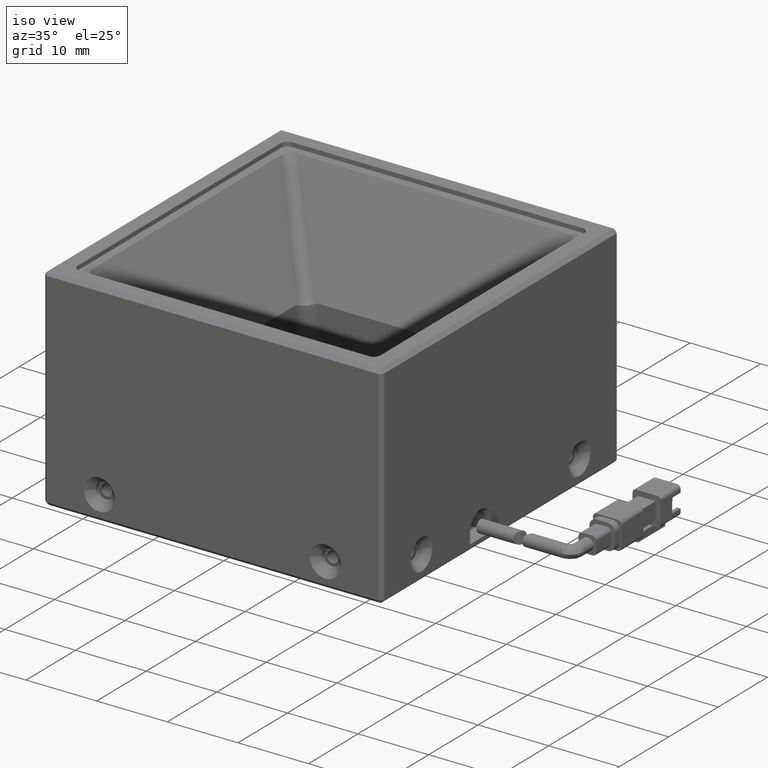
[diagram: clean part render]
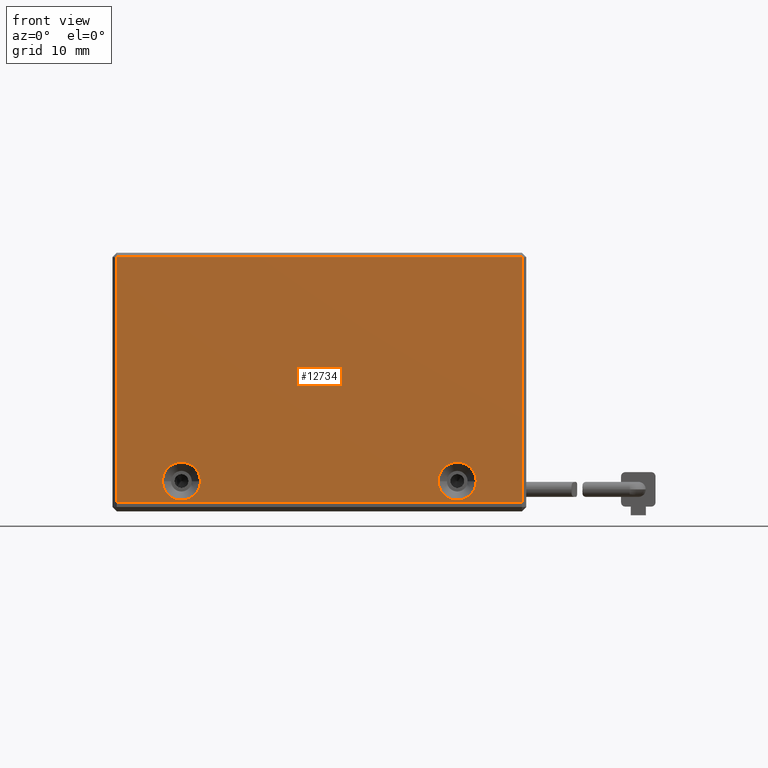
[diagram: tour spotlight — one face highlighted and labeled with its STEP entity id]
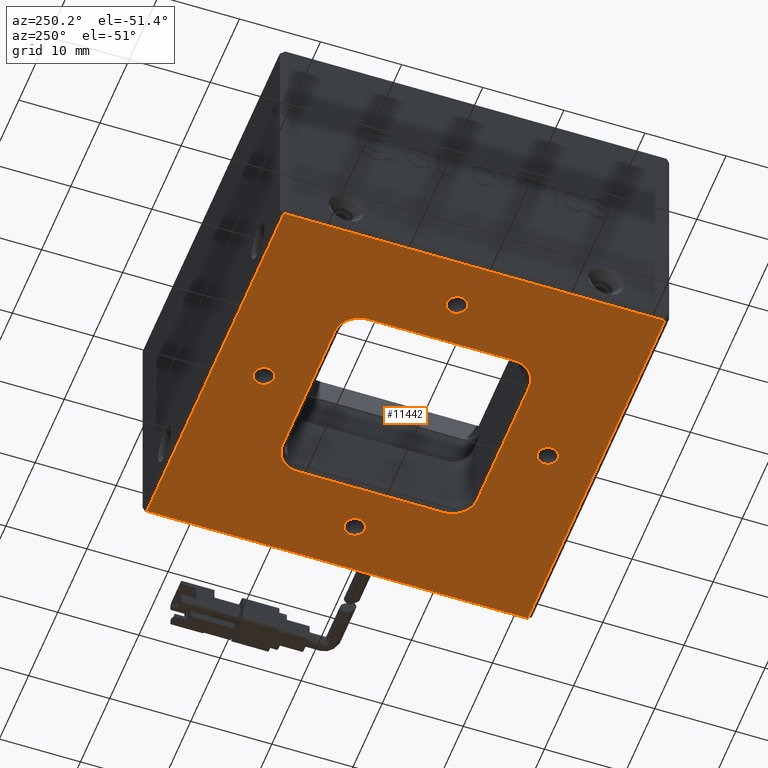
[diagram: tour spotlight — one face highlighted and labeled with its STEP entity id]
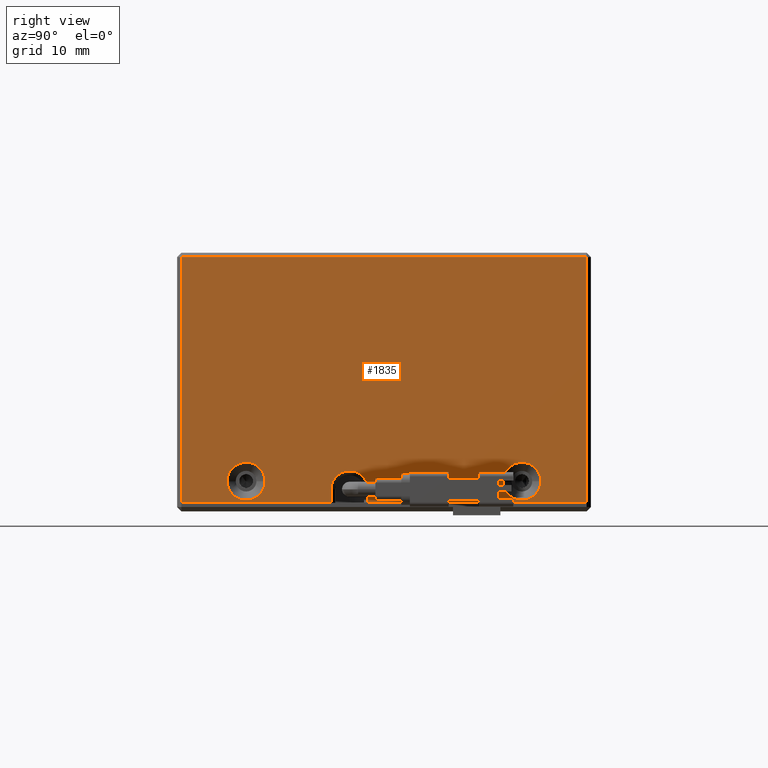
[diagram: tour spotlight — one face highlighted and labeled with its STEP entity id]
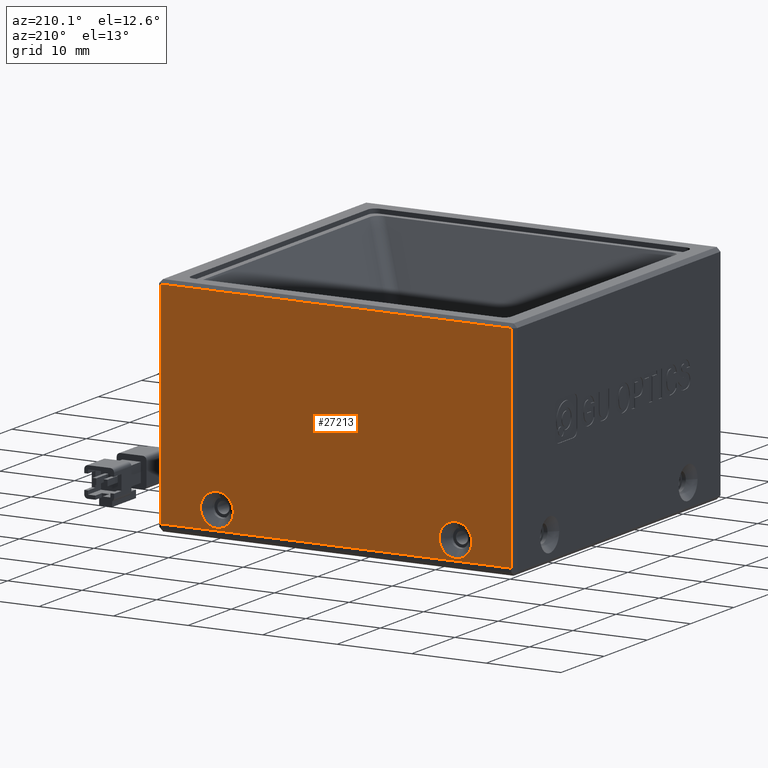
[diagram: tour spotlight — one face highlighted and labeled with its STEP entity id]
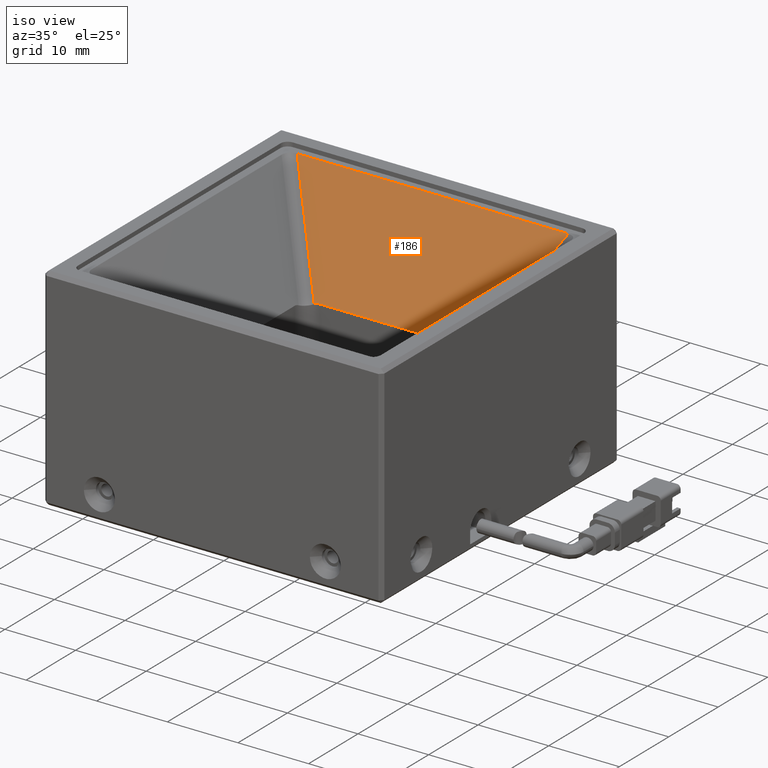
[diagram: tour spotlight — one face highlighted and labeled with its STEP entity id]
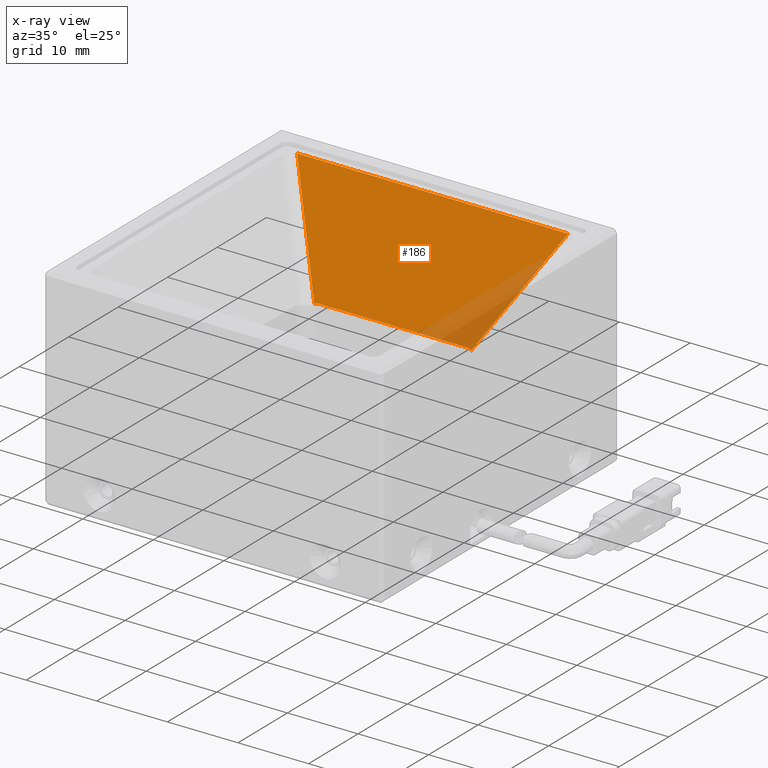
[diagram: x-ray of the same camera — body ghosted, this tour face saturated]
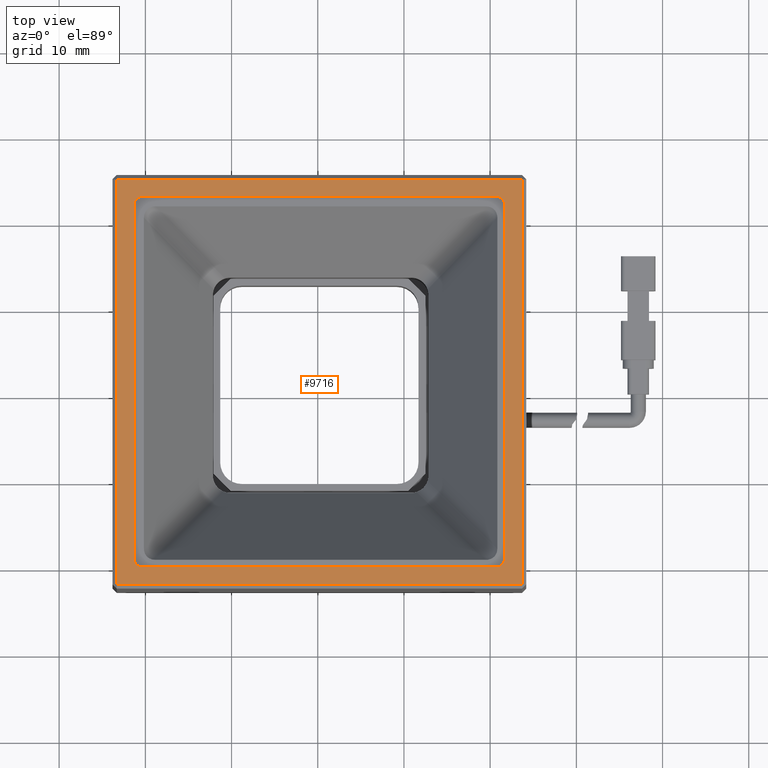
[diagram: tour spotlight — one face highlighted and labeled with its STEP entity id]
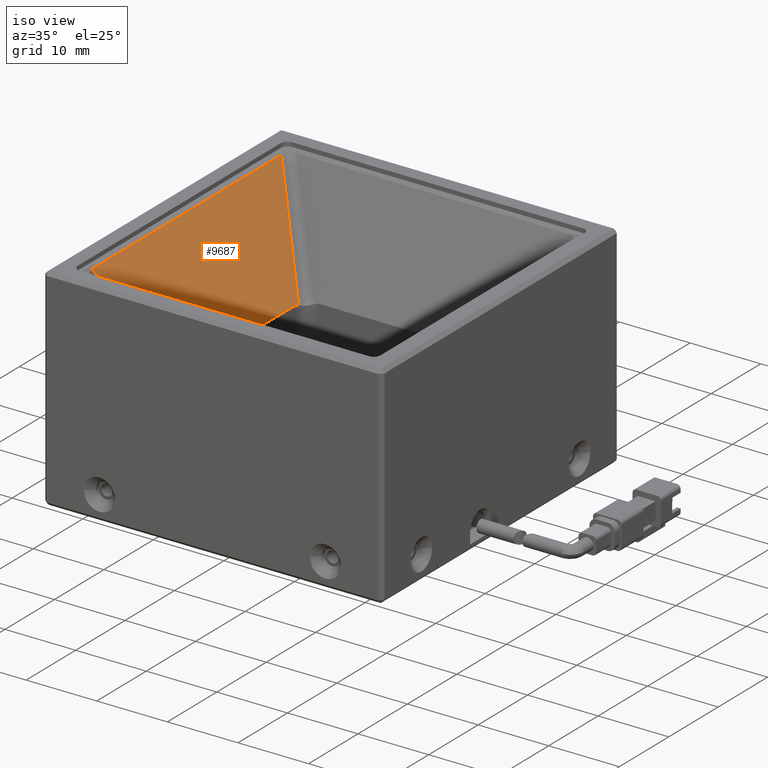
[diagram: tour spotlight — one face highlighted and labeled with its STEP entity id]
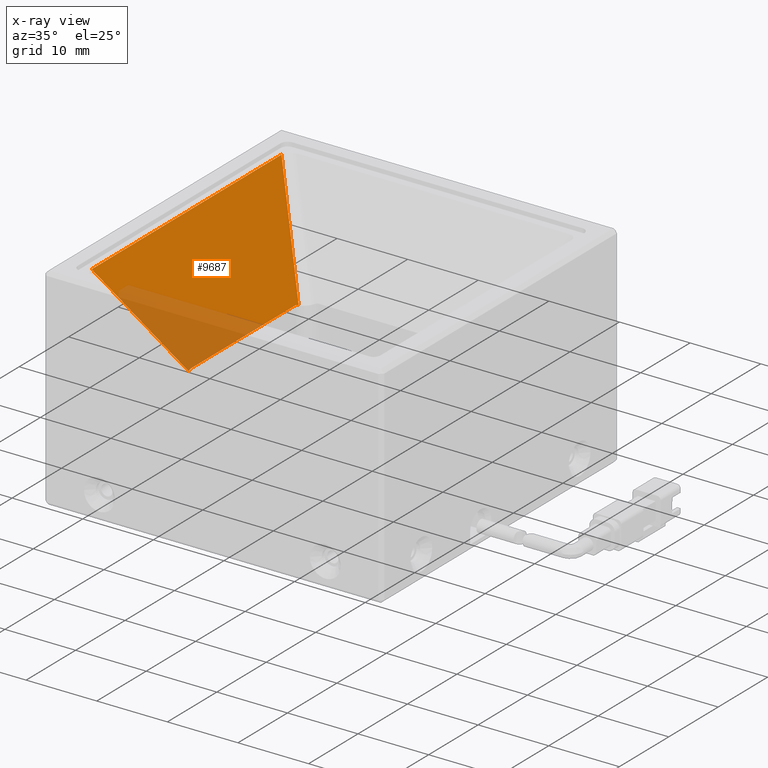
[diagram: x-ray of the same camera — body ghosted, this tour face saturated]
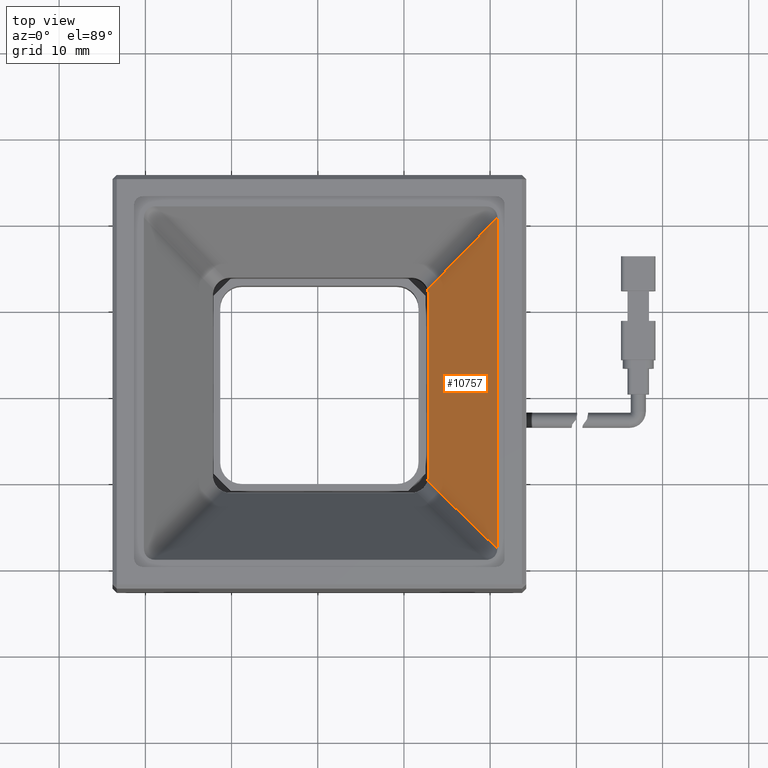
[diagram: tour spotlight — one face highlighted and labeled with its STEP entity id]
A machine part: a face-by-face anatomy tour. The part has 678 B-rep faces; the first image is the clean iso view, then the 8 largest visible faces are spotlighted one at a time (largest first), each with its STEP entity span.

Face 1 — front view, entity #12734. In plain terms, the highlighted planar face has unit normal (0, 1, 0).
Definition (entity closure, byte-faithful):
#61 = VERTEX_POINT ( 'NONE', #17787 ) ;
#428 = DIRECTION ( 'NONE',  ( 1.000000000000000000, 0.0000000000000000000, -0.0000000000000000000 ) ) ;
#1187 = CIRCLE ( 'NONE', #28267, 2.199999999961619300 ) ;
#1496 = AXIS2_PLACEMENT_3D ( 'NONE', #4074, #19987, #6322 ) ;
#2633 = DIRECTION ( 'NONE',  ( 7.885106709530522900E-016, -1.000000000000000000, 0.0000000000000000000 ) ) ;
#2667 = EDGE_CURVE ( 'NONE', #3394, #7673, #6413, .T. ) ;
#2851 = ORIENTED_EDGE ( 'NONE', *, *, #7896, .F. ) ;
#3394 = VERTEX_POINT ( 'NONE', #23345 ) ;
#4074 = CARTESIAN_POINT ( 'NONE',  ( -3.814274585480656600, -22.59390667119969400, 3.500000000007276400 ) ) ;
#4857 = CARTESIAN_POINT ( 'NONE',  ( 3.685725414519343400, -22.59390667125562800, 30.00000000000728000 ) ) ;
#4951 = ORIENTED_EDGE ( 'NONE', *, *, #9100, .F. ) ;
#4961 = EDGE_CURVE ( 'NONE', #25312, #19183, #6384, .T. ) ;
#5084 = VERTEX_POINT ( 'NONE', #27826 ) ;
#5091 = CARTESIAN_POINT ( 'NONE',  ( -43.81427458548066100, -22.59390667125562800, 29.50000000000727600 ) ) ;
#5196 = LINE ( 'NONE', #5091, #17287 ) ;
#6172 = CIRCLE ( 'NONE', #11091, 2.199999999961621500 ) ;
#6322 = DIRECTION ( 'NONE',  ( 1.000000000000000000, 1.577021341824609700E-015, 0.0000000000000000000 ) ) ;
#6384 = CIRCLE ( 'NONE', #23983, 2.199999999961621500 ) ;
#6413 = LINE ( 'NONE', #21618, #11739 ) ;
#6903 = EDGE_CURVE ( 'NONE', #5084, #25595, #1187, .T. ) ;
#7112 = DIRECTION ( 'NONE',  ( -0.0000000000000000000, 0.0000000000000000000, -1.000000000000000000 ) ) ;
#7673 = VERTEX_POINT ( 'NONE', #16522 ) ;
#7872 = CARTESIAN_POINT ( 'NONE',  ( 3.685725414519346500, -22.59390667125562800, 29.50000000000727600 ) ) ;
#7896 = EDGE_CURVE ( 'NONE', #19183, #25312, #6172, .T. ) ;
#7989 = DIRECTION ( 'NONE',  ( -0.0000000000000000000, 0.0000000000000000000, -1.000000000000000000 ) ) ;
#8227 = VERTEX_POINT ( 'NONE', #7872 ) ;
#8454 = FACE_OUTER_BOUND ( 'NONE', #22277, .T. ) ;
#9060 = ORIENTED_EDGE ( 'NONE', *, *, #2667, .T. ) ;
#9100 = EDGE_CURVE ( 'NONE', #8227, #61, #22626, .T. ) ;
#9168 = FACE_BOUND ( 'NONE', #26593, .T. ) ;
#9712 = CARTESIAN_POINT ( 'NONE',  ( -38.01427458544228000, -22.59390667125654100, 3.500000000007276800 ) ) ;
#11091 = AXIS2_PLACEMENT_3D ( 'NONE', #26523, #12900, #28823 ) ;
#11187 = VECTOR ( 'NONE', #7112, 1000.000000000000000 ) ;
#11451 = DIRECTION ( 'NONE',  ( 7.885106709123046700E-016, -1.000000000000000000, 0.0000000000000000000 ) ) ;
#11739 = VECTOR ( 'NONE', #7989, 1000.000000000000000 ) ;
#11764 = ORIENTED_EDGE ( 'NONE', *, *, #4961, .F. ) ;
#12045 = ORIENTED_EDGE ( 'NONE', *, *, #29304, .F. ) ;
#12275 = DIRECTION ( 'NONE',  ( 0.0000000000000000000, 1.000000000000000000, 0.0000000000000000000 ) ) ;
#12734 = ADVANCED_FACE ( 'NONE', ( #9168, #26594, #8454 ), #16814, .F. ) ;
#12900 = DIRECTION ( 'NONE',  ( 7.885106709123046700E-016, -1.000000000000000000, 0.0000000000000000000 ) ) ;
#13425 = CARTESIAN_POINT ( 'NONE',  ( -43.81427458548066100, -22.59390667125562800, 1.000000000007276400 ) ) ;
#15742 = DIRECTION ( 'NONE',  ( 1.000000000000000000, 0.0000000000000000000, 0.0000000000000000000 ) ) ;
#15882 = LINE ( 'NONE', #13425, #28007 ) ;
#16125 = ORIENTED_EDGE ( 'NONE', *, *, #6903, .F. ) ;
#16261 = CARTESIAN_POINT ( 'NONE',  ( -3.814274585480656600, -22.59390667119969400, 3.500000000007276400 ) ) ;
#16288 = EDGE_LOOP ( 'NONE', ( #23936, #16125 ) ) ;
#16522 = CARTESIAN_POINT ( 'NONE',  ( -43.31427458548065300, -22.59390667125562800, 1.000000000007269300 ) ) ;
#16814 = PLANE ( 'NONE',  #27525 ) ;
#17287 = VECTOR ( 'NONE', #428, 1000.000000000000000 ) ;
#17787 = CARTESIAN_POINT ( 'NONE',  ( 3.685725414519346500, -22.59390667125562800, 1.000000000007269300 ) ) ;
#18565 = DIRECTION ( 'NONE',  ( 1.000000000000000000, 1.577021341824609700E-015, 0.0000000000000000000 ) ) ;
#19183 = VERTEX_POINT ( 'NONE', #9712 ) ;
#19904 = ORIENTED_EDGE ( 'NONE', *, *, #29165, .T. ) ;
#19987 = DIRECTION ( 'NONE',  ( 7.885106709530522900E-016, -1.000000000000000000, 0.0000000000000000000 ) ) ;
#21618 = CARTESIAN_POINT ( 'NONE',  ( -43.31427458548065300, -22.59390667125562800, 30.00000000000728000 ) ) ;
#22277 = EDGE_LOOP ( 'NONE', ( #9060, #19904, #4951, #12045 ) ) ;
#22626 = LINE ( 'NONE', #4857, #11187 ) ;
#23238 = EDGE_CURVE ( 'NONE', #25595, #5084, #26927, .T. ) ;
#23283 = CARTESIAN_POINT ( 'NONE',  ( -33.61427458551903400, -22.59390667125653700, 3.500000000007276400 ) ) ;
#23345 = CARTESIAN_POINT ( 'NONE',  ( -43.31427458548065300, -22.59390667125562800, 29.50000000000728000 ) ) ;
#23936 = ORIENTED_EDGE ( 'NONE', *, *, #23238, .F. ) ;
#23983 = AXIS2_PLACEMENT_3D ( 'NONE', #25089, #11451, #27403 ) ;
#24435 = CARTESIAN_POINT ( 'NONE',  ( -1.614274585519035200, -22.59390667119969000, 3.500000000007276400 ) ) ;
#25089 = CARTESIAN_POINT ( 'NONE',  ( -35.81427458548066100, -22.59390667125653700, 3.500000000007276400 ) ) ;
#25312 = VERTEX_POINT ( 'NONE', #23283 ) ;
#25595 = VERTEX_POINT ( 'NONE', #24435 ) ;
#25918 = CARTESIAN_POINT ( 'NONE',  ( -43.81427458548066100, -22.59390667125562800, 30.00000000000728000 ) ) ;
#26523 = CARTESIAN_POINT ( 'NONE',  ( -35.81427458548066100, -22.59390667125653700, 3.500000000007276400 ) ) ;
#26593 = EDGE_LOOP ( 'NONE', ( #11764, #2851 ) ) ;
#26594 = FACE_BOUND ( 'NONE', #16288, .T. ) ;
#26927 = CIRCLE ( 'NONE', #1496, 2.199999999961619300 ) ;
#27403 = DIRECTION ( 'NONE',  ( 1.000000000000000000, 0.0000000000000000000, 0.0000000000000000000 ) ) ;
#27525 = AXIS2_PLACEMENT_3D ( 'NONE', #25918, #12275, #28242 ) ;
#27826 = CARTESIAN_POINT ( 'NONE',  ( -6.014274585442274600, -22.59390667119969700, 3.500000000007276800 ) ) ;
#28007 = VECTOR ( 'NONE', #15742, 1000.000000000000000 ) ;
#28242 = DIRECTION ( 'NONE',  ( 0.0000000000000000000, -0.0000000000000000000, 1.000000000000000000 ) ) ;
#28267 = AXIS2_PLACEMENT_3D ( 'NONE', #16261, #2633, #18565 ) ;
#28823 = DIRECTION ( 'NONE',  ( 1.000000000000000000, 0.0000000000000000000, 0.0000000000000000000 ) ) ;
#29165 = EDGE_CURVE ( 'NONE', #7673, #61, #15882, .T. ) ;
#29304 = EDGE_CURVE ( 'NONE', #3394, #8227, #5196, .T. ) ;

Face 2 — auxiliary view, entity #11442. In plain terms, the highlighted planar face has unit normal (-0, 0, 1).
Definition (entity closure, byte-faithful):
#577 = DIRECTION ( 'NONE',  ( -1.000000000000000000, -0.0000000000000000000, -0.0000000000000000000 ) ) ;
#589 = CARTESIAN_POINT ( 'NONE',  ( -7.814274585480646400, -22.59390667125562800, 7.275430258246729000E-012 ) ) ;
#1048 = VERTEX_POINT ( 'NONE', #6872 ) ;
#1421 = EDGE_CURVE ( 'NONE', #10176, #26725, #23707, .T. ) ;
#1479 = AXIS2_PLACEMENT_3D ( 'NONE', #28756, #15137, #1522 ) ;
#1522 = DIRECTION ( 'NONE',  ( -1.000000000000000000, 0.0000000000000000000, 0.0000000000000000000 ) ) ;
#1537 = DIRECTION ( 'NONE',  ( 0.0000000000000000000, 0.0000000000000000000, -1.000000000000000000 ) ) ;
#1593 = CARTESIAN_POINT ( 'NONE',  ( -31.81427458544500200, -7.593906671255620500, 4.297191942799812300E-011 ) ) ;
#1614 = EDGE_LOOP ( 'NONE', ( #24939, #27161, #8821, #28108 ) ) ;
#1985 = DIRECTION ( 'NONE',  ( -1.000000000000000000, 0.0000000000000000000, 0.0000000000000000000 ) ) ;
#2043 = EDGE_CURVE ( 'NONE', #10644, #25849, #18674, .T. ) ;
#2078 = VERTEX_POINT ( 'NONE', #8385 ) ;
#2206 = FACE_BOUND ( 'NONE', #9827, .T. ) ;
#2375 = CARTESIAN_POINT ( 'NONE',  ( -28.81427458548066400, 13.40609332870870000, 4.297170258756362600E-011 ) ) ;
#2509 = VERTEX_POINT ( 'NONE', #7292 ) ;
#2650 = CARTESIAN_POINT ( 'NONE',  ( -10.81427458548066600, -10.59390667124869600, 7.275430258246729000E-012 ) ) ;
#2873 = ORIENTED_EDGE ( 'NONE', *, *, #19980, .F. ) ;
#2936 = FACE_BOUND ( 'NONE', #23748, .T. ) ;
#3347 = EDGE_CURVE ( 'NONE', #28031, #1048, #8135, .T. ) ;
#3615 = VERTEX_POINT ( 'NONE', #4506 ) ;
#3796 = VERTEX_POINT ( 'NONE', #28075 ) ;
#4158 = EDGE_CURVE ( 'NONE', #26725, #10176, #18729, .T. ) ;
#4322 = DIRECTION ( 'NONE',  ( 0.0000000000000000000, 0.0000000000000000000, -1.000000000000000000 ) ) ;
#4506 = CARTESIAN_POINT ( 'NONE',  ( -38.56427458548067500, 1.406093328744373500, 7.275485367352690500E-012 ) ) ;
#4901 = CARTESIAN_POINT ( 'NONE',  ( 3.685725414519322600, -22.59390667125562800, 7.275430258246729000E-012 ) ) ;
#5066 = CARTESIAN_POINT ( 'NONE',  ( -19.81427458548067100, 18.90609332874437600, 7.275485367352690500E-012 ) ) ;
#5160 = AXIS2_PLACEMENT_3D ( 'NONE', #10081, #25980, #12343 ) ;
#5351 = CARTESIAN_POINT ( 'NONE',  ( -43.81427458548066800, -10.59390667125564900, 7.275430258246729000E-012 ) ) ;
#5368 = CARTESIAN_POINT ( 'NONE',  ( -43.31427458548065300, 24.90609332874434400, 7.274679309223554400E-012 ) ) ;
#5367 = DIRECTION ( 'NONE',  ( -0.0000000000000000000, -1.000000000000000000, 0.0000000000000000000 ) ) ;
#5964 = CARTESIAN_POINT ( 'NONE',  ( -7.814274585487599000, -7.593906671255624000, 7.275430258246729000E-012 ) ) ;
#6203 = CIRCLE ( 'NONE', #5160, 1.250000000000001100 ) ;
#6424 = VERTEX_POINT ( 'NONE', #5368 ) ;
#6638 = LINE ( 'NONE', #16497, #12683 ) ;
#6872 = CARTESIAN_POINT ( 'NONE',  ( -21.06427458548066800, 18.90609332874437600, 7.275485367352690500E-012 ) ) ;
#6902 = DIRECTION ( 'NONE',  ( 0.0000000000000000000, 0.0000000000000000000, -1.000000000000000000 ) ) ;
#6972 = CIRCLE ( 'NONE', #8001, 1.249999999999997600 ) ;
#7160 = DIRECTION ( 'NONE',  ( 0.0000000000000000000, 1.000000000000000000, -0.0000000000000000000 ) ) ;
#7172 = CARTESIAN_POINT ( 'NONE',  ( -43.81427458548066800, 13.40609332874439700, 7.275430258246729000E-012 ) ) ;
#7189 = DIRECTION ( 'NONE',  ( -1.000000000000000000, 0.0000000000000000000, 0.0000000000000000000 ) ) ;
#7292 = CARTESIAN_POINT ( 'NONE',  ( -10.81427458548066900, 13.40609332873744500, 7.275430258246729000E-012 ) ) ;
#7324 = DIRECTION ( 'NONE',  ( -1.000000000000000000, 0.0000000000000000000, 0.0000000000000000000 ) ) ;
#7384 = DIRECTION ( 'NONE',  ( -0.0000000000000000000, -0.0000000000000000000, -1.000000000000000000 ) ) ;
#7501 = CARTESIAN_POINT ( 'NONE',  ( -2.314274585480669000, 1.406093328744373500, 7.275485367352690500E-012 ) ) ;
#7590 = EDGE_CURVE ( 'NONE', #11697, #2509, #10458, .T. ) ;
#7682 = CARTESIAN_POINT ( 'NONE',  ( -18.56427458548067500, -16.09390667125562800, 7.275485367352690500E-012 ) ) ;
#7881 = CIRCLE ( 'NONE', #24467, 1.249999999999997600 ) ;
#8001 = AXIS2_PLACEMENT_3D ( 'NONE', #8182, #24081, #10443 ) ;
#8135 = CIRCLE ( 'NONE', #18633, 1.249999999999997600 ) ;
#8182 = CARTESIAN_POINT ( 'NONE',  ( -19.81427458548067100, 18.90609332874437600, 7.275485367352690500E-012 ) ) ;
#8255 = FACE_BOUND ( 'NONE', #26161, .T. ) ;
#8385 = CARTESIAN_POINT ( 'NONE',  ( -31.81427458547363000, 10.40609332874437400, 5.024626548647652100E-011 ) ) ;
#8467 = AXIS2_PLACEMENT_3D ( 'NONE', #23831, #10179, #26079 ) ;
#8700 = EDGE_CURVE ( 'NONE', #26183, #6424, #6638, .T. ) ;
#8821 = ORIENTED_EDGE ( 'NONE', *, *, #26996, .F. ) ;
#8842 = ORIENTED_EDGE ( 'NONE', *, *, #23405, .F. ) ;
#8969 = FACE_BOUND ( 'NONE', #11734, .T. ) ;
#9021 = CARTESIAN_POINT ( 'NONE',  ( -18.56427458548067500, 18.90609332874437600, 7.275485367352690500E-012 ) ) ;
#9183 = ORIENTED_EDGE ( 'NONE', *, *, #2043, .F. ) ;
#9268 = ORIENTED_EDGE ( 'NONE', *, *, #4158, .F. ) ;
#9350 = CARTESIAN_POINT ( 'NONE',  ( -43.31427458548065300, -22.59390667125562800, 7.275430258246729000E-012 ) ) ;
#9375 = LINE ( 'NONE', #9350, #15427 ) ;
#9379 = CARTESIAN_POINT ( 'NONE',  ( 3.685725414519332800, -22.09390667125562400, 7.275009622261395100E-012 ) ) ;
#9700 = CIRCLE ( 'NONE', #1479, 2.999999999985902800 ) ;
#9827 = EDGE_LOOP ( 'NONE', ( #2873, #19794 ) ) ;
#9940 = ORIENTED_EDGE ( 'NONE', *, *, #13997, .F. ) ;
#10002 = VECTOR ( 'NONE', #7160, 1000.000000000000000 ) ;
#10081 = CARTESIAN_POINT ( 'NONE',  ( -37.31427458548067500, 1.406093328744373500, 7.275485367352690500E-012 ) ) ;
#10176 = VERTEX_POINT ( 'NONE', #12842 ) ;
#10179 = DIRECTION ( 'NONE',  ( -0.0000000000000000000, -0.0000000000000000000, -1.000000000000000000 ) ) ;
#10443 = DIRECTION ( 'NONE',  ( -1.000000000000000000, 0.0000000000000000000, 0.0000000000000000000 ) ) ;
#10458 = LINE ( 'NONE', #7172, #27938 ) ;
#10635 = DIRECTION ( 'NONE',  ( -0.0000000000000000000, 0.0000000000000000000, 1.000000000000000000 ) ) ;
#10644 = VERTEX_POINT ( 'NONE', #5964 ) ;
#10675 = CARTESIAN_POINT ( 'NONE',  ( 3.685725414519322600, 24.90609332874435800, 7.274583225299474700E-012 ) ) ;
#10817 = EDGE_CURVE ( 'NONE', #26601, #29083, #17458, .T. ) ;
#11140 = LINE ( 'NONE', #13047, #17254 ) ;
#11442 = ADVANCED_FACE ( 'NONE', ( #8969, #2206, #2936, #8255, #25670, #19665 ), #26143, .F. ) ;
#11553 = EDGE_CURVE ( 'NONE', #19867, #24328, #23909, .T. ) ;
#11697 = VERTEX_POINT ( 'NONE', #2375 ) ;
#11734 = EDGE_LOOP ( 'NONE', ( #14061, #15791 ) ) ;
#11749 = EDGE_CURVE ( 'NONE', #26470, #26183, #16070, .T. ) ;
#11770 = CARTESIAN_POINT ( 'NONE',  ( -19.81427458548067100, -16.09390667125562800, 7.275485367352690500E-012 ) ) ;
#12061 = AXIS2_PLACEMENT_3D ( 'NONE', #15154, #1537, #17465 ) ;
#12228 = CARTESIAN_POINT ( 'NONE',  ( -28.81427458548067100, -10.59390667124858800, 5.024626548647652100E-011 ) ) ;
#12343 = DIRECTION ( 'NONE',  ( -1.000000000000000000, 0.0000000000000000000, 0.0000000000000000000 ) ) ;
#12683 = VECTOR ( 'NONE', #577, 1000.000000000000000 ) ;
#12700 = EDGE_CURVE ( 'NONE', #27388, #10644, #15939, .T. ) ;
#12842 = CARTESIAN_POINT ( 'NONE',  ( -1.064274585480667900, 1.406093328744373800, 7.275485367352690500E-012 ) ) ;
#13047 = CARTESIAN_POINT ( 'NONE',  ( -43.81427458548066800, -22.09390667125562000, 7.275430258246729000E-012 ) ) ;
#13378 = CARTESIAN_POINT ( 'NONE',  ( -31.81427458548069600, -22.59390667125562800, 7.275430258246729000E-012 ) ) ;
#13501 = DIRECTION ( 'NONE',  ( -0.0000000000000000000, -0.0000000000000000000, -1.000000000000000000 ) ) ;
#13997 = EDGE_CURVE ( 'NONE', #21889, #3615, #6203, .T. ) ;
#14061 = ORIENTED_EDGE ( 'NONE', *, *, #16923, .F. ) ;
#14064 = DIRECTION ( 'NONE',  ( -1.000000000000000000, 0.0000000000000000000, 0.0000000000000000000 ) ) ;
#15137 = DIRECTION ( 'NONE',  ( 0.0000000000000000000, 0.0000000000000000000, -1.000000000000000000 ) ) ;
#15154 = CARTESIAN_POINT ( 'NONE',  ( -10.81427458548066800, -7.593906671255624000, 7.275430258246729000E-012 ) ) ;
#15222 = VECTOR ( 'NONE', #5367, 1000.000000000000000 ) ;
#15427 = VECTOR ( 'NONE', #27544, 1000.000000000000000 ) ;
#15593 = CARTESIAN_POINT ( 'NONE',  ( -7.814274585480648100, 10.40609332874438500, 7.275430258246729000E-012 ) ) ;
#15629 = DIRECTION ( 'NONE',  ( -0.0000000000000000000, -0.0000000000000000000, -1.000000000000000000 ) ) ;
#15689 = AXIS2_PLACEMENT_3D ( 'NONE', #17907, #4322, #20204 ) ;
#15791 = ORIENTED_EDGE ( 'NONE', *, *, #10817, .F. ) ;
#15939 = LINE ( 'NONE', #589, #15222 ) ;
#16070 = LINE ( 'NONE', #4901, #10002 ) ;
#16442 = LINE ( 'NONE', #13378, #22496 ) ;
#16497 = CARTESIAN_POINT ( 'NONE',  ( -43.81427458548066800, 24.90609332874435800, 7.275430258246729000E-012 ) ) ;
#16923 = EDGE_CURVE ( 'NONE', #29083, #26601, #7881, .T. ) ;
#17254 = VECTOR ( 'NONE', #26687, 1000.000000000000000 ) ;
#17458 = CIRCLE ( 'NONE', #20620, 1.249999999999997600 ) ;
#17465 = DIRECTION ( 'NONE',  ( -1.000000000000000000, 0.0000000000000000000, 0.0000000000000000000 ) ) ;
#17870 = EDGE_CURVE ( 'NONE', #3796, #26470, #11140, .T. ) ;
#17907 = CARTESIAN_POINT ( 'NONE',  ( -28.81427458548067100, -7.593906671255627600, 7.866797491688052200E-011 ) ) ;
#18083 = ORIENTED_EDGE ( 'NONE', *, *, #19239, .F. ) ;
#18258 = EDGE_CURVE ( 'NONE', #2078, #11697, #9700, .T. ) ;
#18464 = ORIENTED_EDGE ( 'NONE', *, *, #12700, .F. ) ;
#18633 = AXIS2_PLACEMENT_3D ( 'NONE', #5066, #20985, #7324 ) ;
#18652 = ORIENTED_EDGE ( 'NONE', *, *, #1421, .F. ) ;
#18674 = CIRCLE ( 'NONE', #12061, 3.000000000028197000 ) ;
#18729 = CIRCLE ( 'NONE', #25479, 1.250000000000001100 ) ;
#18984 = ORIENTED_EDGE ( 'NONE', *, *, #18258, .F. ) ;
#19075 = CIRCLE ( 'NONE', #8467, 1.250000000000001100 ) ;
#19185 = ORIENTED_EDGE ( 'NONE', *, *, #7590, .F. ) ;
#19239 = EDGE_CURVE ( 'NONE', #25849, #19867, #28119, .T. ) ;
#19500 = AXIS2_PLACEMENT_3D ( 'NONE', #7501, #7384, #7189 ) ;
#19665 = FACE_BOUND ( 'NONE', #22751, .T. ) ;
#19794 = ORIENTED_EDGE ( 'NONE', *, *, #3347, .F. ) ;
#19867 = VERTEX_POINT ( 'NONE', #12228 ) ;
#19980 = EDGE_CURVE ( 'NONE', #1048, #28031, #6972, .T. ) ;
#20204 = DIRECTION ( 'NONE',  ( -1.000000000000000000, 0.0000000000000000000, 0.0000000000000000000 ) ) ;
#20545 = CIRCLE ( 'NONE', #27410, 3.000000000028195200 ) ;
#20565 = CARTESIAN_POINT ( 'NONE',  ( -10.81427458548066900, 10.40609332874437400, 7.275430258246729000E-012 ) ) ;
#20620 = AXIS2_PLACEMENT_3D ( 'NONE', #11770, #27720, #14064 ) ;
#20985 = DIRECTION ( 'NONE',  ( -0.0000000000000000000, -0.0000000000000000000, -1.000000000000000000 ) ) ;
#21889 = VERTEX_POINT ( 'NONE', #27358 ) ;
#22056 = VECTOR ( 'NONE', #25792, 1000.000000000000000 ) ;
#22496 = VECTOR ( 'NONE', #27002, 1000.000000000000000 ) ;
#22751 = EDGE_LOOP ( 'NONE', ( #18464, #8842, #19185, #18984, #26766, #23231, #18083, #9183 ) ) ;
#22847 = DIRECTION ( 'NONE',  ( -1.000000000000000000, 0.0000000000000000000, 0.0000000000000000000 ) ) ;
#23103 = DIRECTION ( 'NONE',  ( 1.000000000000000000, 0.0000000000000000000, 0.0000000000000000000 ) ) ;
#23231 = ORIENTED_EDGE ( 'NONE', *, *, #11553, .F. ) ;
#23405 = EDGE_CURVE ( 'NONE', #2509, #27388, #20545, .T. ) ;
#23417 = ORIENTED_EDGE ( 'NONE', *, *, #26026, .F. ) ;
#23707 = CIRCLE ( 'NONE', #19500, 1.250000000000001100 ) ;
#23748 = EDGE_LOOP ( 'NONE', ( #23417, #9940 ) ) ;
#23831 = CARTESIAN_POINT ( 'NONE',  ( -37.31427458548067500, 1.406093328744373500, 7.275485367352690500E-012 ) ) ;
#23909 = CIRCLE ( 'NONE', #15689, 2.999999999985902800 ) ;
#24081 = DIRECTION ( 'NONE',  ( -0.0000000000000000000, -0.0000000000000000000, -1.000000000000000000 ) ) ;
#24281 = CARTESIAN_POINT ( 'NONE',  ( -43.81427458548066800, -22.59390667125562800, 7.275430258246729000E-012 ) ) ;
#24328 = VERTEX_POINT ( 'NONE', #1593 ) ;
#24467 = AXIS2_PLACEMENT_3D ( 'NONE', #29232, #15629, #1985 ) ;
#24939 = ORIENTED_EDGE ( 'NONE', *, *, #11749, .F. ) ;
#25363 = AXIS2_PLACEMENT_3D ( 'NONE', #24281, #10635, #26547 ) ;
#25479 = AXIS2_PLACEMENT_3D ( 'NONE', #27112, #13501, #29389 ) ;
#25670 = FACE_OUTER_BOUND ( 'NONE', #1614, .T. ) ;
#25792 = DIRECTION ( 'NONE',  ( -1.000000000000000000, -0.0000000000000000000, -0.0000000000000000000 ) ) ;
#25849 = VERTEX_POINT ( 'NONE', #2650 ) ;
#25980 = DIRECTION ( 'NONE',  ( -0.0000000000000000000, -0.0000000000000000000, -1.000000000000000000 ) ) ;
#26026 = EDGE_CURVE ( 'NONE', #3615, #21889, #19075, .T. ) ;
#26079 = DIRECTION ( 'NONE',  ( -1.000000000000000000, 0.0000000000000000000, 0.0000000000000000000 ) ) ;
#26143 = PLANE ( 'NONE',  #25363 ) ;
#26161 = EDGE_LOOP ( 'NONE', ( #9268, #18652 ) ) ;
#26183 = VERTEX_POINT ( 'NONE', #10675 ) ;
#26470 = VERTEX_POINT ( 'NONE', #9379 ) ;
#26547 = DIRECTION ( 'NONE',  ( 1.000000000000000000, 0.0000000000000000000, 0.0000000000000000000 ) ) ;
#26601 = VERTEX_POINT ( 'NONE', #7682 ) ;
#26663 = CARTESIAN_POINT ( 'NONE',  ( -21.06427458548066800, -16.09390667125562800, 7.275485367352690500E-012 ) ) ;
#26687 = DIRECTION ( 'NONE',  ( 1.000000000000000000, 0.0000000000000000000, 0.0000000000000000000 ) ) ;
#26725 = VERTEX_POINT ( 'NONE', #28645 ) ;
#26766 = ORIENTED_EDGE ( 'NONE', *, *, #27406, .F. ) ;
#26996 = EDGE_CURVE ( 'NONE', #6424, #3796, #9375, .T. ) ;
#27002 = DIRECTION ( 'NONE',  ( 0.0000000000000000000, 1.000000000000000000, -0.0000000000000000000 ) ) ;
#27112 = CARTESIAN_POINT ( 'NONE',  ( -2.314274585480669000, 1.406093328744373500, 7.275485367352690500E-012 ) ) ;
#27161 = ORIENTED_EDGE ( 'NONE', *, *, #17870, .F. ) ;
#27358 = CARTESIAN_POINT ( 'NONE',  ( -36.06427458548067500, 1.406093328744373800, 7.275485367352690500E-012 ) ) ;
#27388 = VERTEX_POINT ( 'NONE', #15593 ) ;
#27406 = EDGE_CURVE ( 'NONE', #24328, #2078, #16442, .T. ) ;
#27410 = AXIS2_PLACEMENT_3D ( 'NONE', #20565, #6902, #22847 ) ;
#27544 = DIRECTION ( 'NONE',  ( -0.0000000000000000000, -1.000000000000000000, 0.0000000000000000000 ) ) ;
#27720 = DIRECTION ( 'NONE',  ( -0.0000000000000000000, -0.0000000000000000000, -1.000000000000000000 ) ) ;
#27938 = VECTOR ( 'NONE', #23103, 1000.000000000000000 ) ;
#28031 = VERTEX_POINT ( 'NONE', #9021 ) ;
#28075 = CARTESIAN_POINT ( 'NONE',  ( -43.31427458548064600, -22.09390667125562800, 7.275398635683364300E-012 ) ) ;
#28108 = ORIENTED_EDGE ( 'NONE', *, *, #8700, .F. ) ;
#28119 = LINE ( 'NONE', #5351, #22056 ) ;
#28645 = CARTESIAN_POINT ( 'NONE',  ( -3.564274585480670300, 1.406093328744373500, 7.275485367352690500E-012 ) ) ;
#28756 = CARTESIAN_POINT ( 'NONE',  ( -28.81427458548067100, 10.40609332874437400, 7.866797491688052200E-011 ) ) ;
#29083 = VERTEX_POINT ( 'NONE', #26663 ) ;
#29232 = CARTESIAN_POINT ( 'NONE',  ( -19.81427458548067100, -16.09390667125562800, 7.275485367352690500E-012 ) ) ;
#29389 = DIRECTION ( 'NONE',  ( -1.000000000000000000, 0.0000000000000000000, 0.0000000000000000000 ) ) ;

Face 3 — right view, entity #1835. In plain terms, the highlighted planar face has unit normal (-1, 0, 0).
Definition (entity closure, byte-faithful):
#85 = CARTESIAN_POINT ( 'NONE',  ( 4.185725414519343900, 25.40609332874437200, 29.50000000000727600 ) ) ;
#461 = AXIS2_PLACEMENT_3D ( 'NONE', #21161, #7525, #23436 ) ;
#485 = CARTESIAN_POINT ( 'NONE',  ( 4.185725414519343900, -0.4439066712556361500, 30.00000000000728000 ) ) ;
#645 = DIRECTION ( 'NONE',  ( 0.0000000000000000000, 0.0000000000000000000, 1.000000000000000000 ) ) ;
#678 = VECTOR ( 'NONE', #15549, 1000.000000000000000 ) ;
#976 = CARTESIAN_POINT ( 'NONE',  ( 4.185725414463407300, 19.60609332870599200, 3.500000000007276400 ) ) ;
#1341 = ORIENTED_EDGE ( 'NONE', *, *, #19796, .F. ) ;
#1507 = DIRECTION ( 'NONE',  ( 0.0000000000000000000, 0.0000000000000000000, -1.000000000000000000 ) ) ;
#1536 = VERTEX_POINT ( 'NONE', #13694 ) ;
#1619 = DIRECTION ( 'NONE',  ( -0.0000000000000000000, -0.0000000000000000000, -1.000000000000000000 ) ) ;
#1835 = ADVANCED_FACE ( 'NONE', ( #14769, #9440, #26846 ), #9704, .F. ) ;
#1922 = VECTOR ( 'NONE', #7361, 1000.000000000000000 ) ;
#2343 = DIRECTION ( 'NONE',  ( 0.0000000000000000000, 1.000000000000000000, -0.0000000000000000000 ) ) ;
#2372 = LINE ( 'NONE', #85, #3105 ) ;
#2575 = DIRECTION ( 'NONE',  ( -0.0000000000000000000, -0.0000000000000000000, -1.000000000000000000 ) ) ;
#2806 = CARTESIAN_POINT ( 'NONE',  ( 4.185725414519351000, -22.59390667125562800, 1.000000000007276400 ) ) ;
#3105 = VECTOR ( 'NONE', #2343, 1000.000000000000000 ) ;
#3222 = CARTESIAN_POINT ( 'NONE',  ( 4.185725414519347400, -4.743906671255621700, 1.000000000007276400 ) ) ;
#3461 = LINE ( 'NONE', #16546, #21614 ) ;
#3927 = ORIENTED_EDGE ( 'NONE', *, *, #11082, .F. ) ;
#3957 = DIRECTION ( 'NONE',  ( 1.000000000000000000, 7.885106709123046700E-016, -0.0000000000000000000 ) ) ;
#4618 = ORIENTED_EDGE ( 'NONE', *, *, #27000, .F. ) ;
#5167 = DIRECTION ( 'NONE',  ( 0.0000000000000000000, 0.0000000000000000000, 1.000000000000000000 ) ) ;
#5192 = CARTESIAN_POINT ( 'NONE',  ( 4.185725414552858400, -0.4439066712956935000, 2.550000000007275800 ) ) ;
#5430 = CARTESIAN_POINT ( 'NONE',  ( 4.185725414519343900, -22.09390667125563500, 29.50000000000727600 ) ) ;
#5812 = EDGE_CURVE ( 'NONE', #24790, #18854, #19516, .T. ) ;
#6055 = ORIENTED_EDGE ( 'NONE', *, *, #11156, .T. ) ;
#6080 = EDGE_LOOP ( 'NONE', ( #12514, #16182 ) ) ;
#6356 = VECTOR ( 'NONE', #1619, 1000.000000000000000 ) ;
#7076 = LINE ( 'NONE', #17539, #6356 ) ;
#7164 = CARTESIAN_POINT ( 'NONE',  ( 4.185725414463409100, 17.40609332874437200, 3.500000000007276400 ) ) ;
#7282 = CARTESIAN_POINT ( 'NONE',  ( 4.185725414519343900, 24.90609332874438700, 1.000000000007269300 ) ) ;
#7361 = DIRECTION ( 'NONE',  ( 0.0000000000000000000, 1.000000000000000000, -0.0000000000000000000 ) ) ;
#7525 = DIRECTION ( 'NONE',  ( -1.000000000000000000, 0.0000000000000000000, 0.0000000000000000000 ) ) ;
#7668 = CIRCLE ( 'NONE', #9749, 2.199999999961618000 ) ;
#8079 = EDGE_CURVE ( 'NONE', #28989, #24243, #19377, .T. ) ;
#8702 = EDGE_CURVE ( 'NONE', #16085, #22017, #24092, .T. ) ;
#9438 = DIRECTION ( 'NONE',  ( -7.885106709123053600E-016, 1.000000000000000000, 0.0000000000000000000 ) ) ;
#9440 = FACE_BOUND ( 'NONE', #6080, .T. ) ;
#9704 = PLANE ( 'NONE',  #461 ) ;
#9749 = AXIS2_PLACEMENT_3D ( 'NONE', #9843, #25741, #12130 ) ;
#9843 = CARTESIAN_POINT ( 'NONE',  ( 4.185725414463409100, 17.40609332874437200, 3.500000000007276400 ) ) ;
#9915 = VERTEX_POINT ( 'NONE', #7282 ) ;
#10180 = CARTESIAN_POINT ( 'NONE',  ( 4.185725414519347400, -0.4439066712556367600, 1.000000000007276400 ) ) ;
#10227 = EDGE_LOOP ( 'NONE', ( #29099, #6055, #4618, #16766, #1341, #24920, #3927, #13597 ) ) ;
#10601 = CARTESIAN_POINT ( 'NONE',  ( 4.185725414520254300, -16.79390667121724700, 3.500000000007276800 ) ) ;
#11082 = EDGE_CURVE ( 'NONE', #16001, #24243, #7076, .T. ) ;
#11156 = EDGE_CURVE ( 'NONE', #16085, #9915, #12746, .T. ) ;
#11971 = VECTOR ( 'NONE', #5167, 1000.000000000000000 ) ;
#11994 = ORIENTED_EDGE ( 'NONE', *, *, #5812, .F. ) ;
#12130 = DIRECTION ( 'NONE',  ( -7.885106709123053600E-016, 1.000000000000000000, 0.0000000000000000000 ) ) ;
#12508 = VERTEX_POINT ( 'NONE', #13407 ) ;
#12514 = ORIENTED_EDGE ( 'NONE', *, *, #22840, .F. ) ;
#12746 = LINE ( 'NONE', #13152, #678 ) ;
#13127 = CARTESIAN_POINT ( 'NONE',  ( 4.185725414520252500, -14.59390667125562800, 3.500000000007276400 ) ) ;
#13152 = CARTESIAN_POINT ( 'NONE',  ( 4.185725414519343900, -22.59390667125562800, 1.000000000007276400 ) ) ;
#13407 = CARTESIAN_POINT ( 'NONE',  ( 4.185725414463410800, 15.20609332878275300, 3.500000000007276800 ) ) ;
#13543 = VERTEX_POINT ( 'NONE', #976 ) ;
#13587 = CIRCLE ( 'NONE', #18439, 2.199999999961618000 ) ;
#13597 = ORIENTED_EDGE ( 'NONE', *, *, #24284, .F. ) ;
#13694 = CARTESIAN_POINT ( 'NONE',  ( 4.185725414519343900, 24.90609332874439000, 29.50000000000727600 ) ) ;
#14700 = VECTOR ( 'NONE', #2575, 1000.000000000000000 ) ;
#14711 = CIRCLE ( 'NONE', #22182, 2.199999999961619800 ) ;
#14769 = FACE_OUTER_BOUND ( 'NONE', #10227, .T. ) ;
#15122 = DIRECTION ( 'NONE',  ( 1.000000000000000000, 0.0000000000000000000, 0.0000000000000000000 ) ) ;
#15385 = EDGE_CURVE ( 'NONE', #12508, #13543, #7668, .T. ) ;
#15425 = DIRECTION ( 'NONE',  ( -7.885106709123046700E-016, 1.000000000000000000, 0.0000000000000000000 ) ) ;
#15549 = DIRECTION ( 'NONE',  ( 0.0000000000000000000, 1.000000000000000000, -0.0000000000000000000 ) ) ;
#16001 = VERTEX_POINT ( 'NONE', #16575 ) ;
#16085 = VERTEX_POINT ( 'NONE', #10180 ) ;
#16175 = EDGE_CURVE ( 'NONE', #18854, #24790, #14711, .T. ) ;
#16182 = ORIENTED_EDGE ( 'NONE', *, *, #15385, .F. ) ;
#16546 = CARTESIAN_POINT ( 'NONE',  ( 4.185725414519343900, -22.09390667125562000, 30.00000000000728000 ) ) ;
#16575 = CARTESIAN_POINT ( 'NONE',  ( 4.185725414524207500, -4.743906671260486300, 2.550000000007275800 ) ) ;
#16766 = ORIENTED_EDGE ( 'NONE', *, *, #23408, .F. ) ;
#16834 = EDGE_LOOP ( 'NONE', ( #26965, #11994 ) ) ;
#17539 = CARTESIAN_POINT ( 'NONE',  ( 4.185725414519343900, -4.743906671255620800, 30.00000000000728000 ) ) ;
#17557 = CARTESIAN_POINT ( 'NONE',  ( 4.185725414520252500, -14.59390667125562800, 3.500000000007276400 ) ) ;
#18439 = AXIS2_PLACEMENT_3D ( 'NONE', #7164, #23085, #9438 ) ;
#18854 = VERTEX_POINT ( 'NONE', #26721 ) ;
#19377 = LINE ( 'NONE', #2806, #1922 ) ;
#19516 = CIRCLE ( 'NONE', #20610, 2.199999999961619800 ) ;
#19796 = EDGE_CURVE ( 'NONE', #28989, #23589, #3461, .T. ) ;
#19852 = DIRECTION ( 'NONE',  ( -7.885106709123046700E-016, 1.000000000000000000, 0.0000000000000000000 ) ) ;
#20610 = AXIS2_PLACEMENT_3D ( 'NONE', #13127, #29034, #15425 ) ;
#20787 = LINE ( 'NONE', #25246, #14700 ) ;
#21161 = CARTESIAN_POINT ( 'NONE',  ( 4.185725414519343900, 25.40609332874437200, 30.00000000000728000 ) ) ;
#21614 = VECTOR ( 'NONE', #645, 1000.000000000000000 ) ;
#22017 = VERTEX_POINT ( 'NONE', #5192 ) ;
#22182 = AXIS2_PLACEMENT_3D ( 'NONE', #17557, #3957, #19852 ) ;
#22840 = EDGE_CURVE ( 'NONE', #13543, #12508, #13587, .T. ) ;
#23085 = DIRECTION ( 'NONE',  ( 1.000000000000000000, 7.885106709530522900E-016, -0.0000000000000000000 ) ) ;
#23318 = CIRCLE ( 'NONE', #24404, 2.149999999915053200 ) ;
#23408 = EDGE_CURVE ( 'NONE', #23589, #1536, #2372, .T. ) ;
#23436 = DIRECTION ( 'NONE',  ( 0.0000000000000000000, 0.0000000000000000000, 1.000000000000000000 ) ) ;
#23589 = VERTEX_POINT ( 'NONE', #5430 ) ;
#24092 = LINE ( 'NONE', #485, #11971 ) ;
#24189 = CARTESIAN_POINT ( 'NONE',  ( 4.185725414519343900, -22.09390667125562800, 1.000000000007269300 ) ) ;
#24243 = VERTEX_POINT ( 'NONE', #3222 ) ;
#24284 = EDGE_CURVE ( 'NONE', #22017, #16001, #23318, .T. ) ;
#24404 = AXIS2_PLACEMENT_3D ( 'NONE', #28734, #15122, #1507 ) ;
#24790 = VERTEX_POINT ( 'NONE', #10601 ) ;
#24920 = ORIENTED_EDGE ( 'NONE', *, *, #8079, .T. ) ;
#25246 = CARTESIAN_POINT ( 'NONE',  ( 4.185725414519343900, 24.90609332874438000, 30.00000000000728000 ) ) ;
#25741 = DIRECTION ( 'NONE',  ( 1.000000000000000000, 7.885106709530522900E-016, -0.0000000000000000000 ) ) ;
#26721 = CARTESIAN_POINT ( 'NONE',  ( 4.185725414520250700, -12.39390667129400800, 3.500000000007276400 ) ) ;
#26846 = FACE_BOUND ( 'NONE', #16834, .T. ) ;
#26965 = ORIENTED_EDGE ( 'NONE', *, *, #16175, .F. ) ;
#27000 = EDGE_CURVE ( 'NONE', #1536, #9915, #20787, .T. ) ;
#28734 = CARTESIAN_POINT ( 'NONE',  ( 4.185725414529075600, -2.593906671255628500, 2.550000000007276700 ) ) ;
#28989 = VERTEX_POINT ( 'NONE', #24189 ) ;
#29034 = DIRECTION ( 'NONE',  ( 1.000000000000000000, 7.885106709123046700E-016, -0.0000000000000000000 ) ) ;
#29099 = ORIENTED_EDGE ( 'NONE', *, *, #8702, .F. ) ;

Face 4 — auxiliary view, entity #27213. In plain terms, the highlighted planar face has unit normal (0, -1, 0).
Definition (entity closure, byte-faithful):
#537 = EDGE_CURVE ( 'NONE', #11018, #20153, #6035, .T. ) ;
#593 = DIRECTION ( 'NONE',  ( -0.0000000000000000000, 0.0000000000000000000, 1.000000000000000000 ) ) ;
#673 = CARTESIAN_POINT ( 'NONE',  ( -43.31427458548065300, 25.40609332874437200, 1.000000000007272800 ) ) ;
#922 = DIRECTION ( 'NONE',  ( -1.000000000000000000, -0.0000000000000000000, -0.0000000000000000000 ) ) ;
#1411 = EDGE_CURVE ( 'NONE', #5820, #25651, #17663, .T. ) ;
#2177 = VERTEX_POINT ( 'NONE', #14874 ) ;
#2186 = CARTESIAN_POINT ( 'NONE',  ( 3.685725414519329200, 25.40609332874437200, 30.00000000000728000 ) ) ;
#2524 = CARTESIAN_POINT ( 'NONE',  ( -43.81427458548066100, 25.40609332874438000, 1.000000000007276400 ) ) ;
#2672 = DIRECTION ( 'NONE',  ( -0.0000000000000000000, 0.0000000000000000000, 1.000000000000000000 ) ) ;
#2997 = CIRCLE ( 'NONE', #26953, 2.200000000013918800 ) ;
#3260 = DIRECTION ( 'NONE',  ( -0.0000000000000000000, 1.000000000000000000, 0.0000000000000000000 ) ) ;
#5238 = DIRECTION ( 'NONE',  ( -0.0000000000000000000, 1.000000000000000000, 0.0000000000000000000 ) ) ;
#5619 = ORIENTED_EDGE ( 'NONE', *, *, #16000, .F. ) ;
#5624 = ORIENTED_EDGE ( 'NONE', *, *, #26887, .F. ) ;
#5820 = VERTEX_POINT ( 'NONE', #22201 ) ;
#6035 = LINE ( 'NONE', #2186, #23473 ) ;
#7342 = CARTESIAN_POINT ( 'NONE',  ( -43.31427458548065300, 25.40609332874437200, 30.00000000000728000 ) ) ;
#8137 = CARTESIAN_POINT ( 'NONE',  ( -43.81427458548066100, 25.40609332874437200, 30.00000000000728000 ) ) ;
#8266 = DIRECTION ( 'NONE',  ( 0.0000000000000000000, 0.0000000000000000000, 1.000000000000000000 ) ) ;
#8374 = AXIS2_PLACEMENT_3D ( 'NONE', #16878, #3260, #19164 ) ;
#9234 = CARTESIAN_POINT ( 'NONE',  ( -3.814274585480656600, 25.40609332868843900, 5.700000000021191200 ) ) ;
#9290 = DIRECTION ( 'NONE',  ( -0.0000000000000000000, 1.000000000000000000, 0.0000000000000000000 ) ) ;
#9381 = CARTESIAN_POINT ( 'NONE',  ( -35.81427458548066100, 25.40609332874528200, 3.500000000007272800 ) ) ;
#9559 = ORIENTED_EDGE ( 'NONE', *, *, #537, .F. ) ;
#10389 = FACE_OUTER_BOUND ( 'NONE', #29484, .T. ) ;
#10400 = DIRECTION ( 'NONE',  ( 0.0000000000000000000, -0.0000000000000000000, -1.000000000000000000 ) ) ;
#11018 = VERTEX_POINT ( 'NONE', #26275 ) ;
#11298 = DIRECTION ( 'NONE',  ( -0.0000000000000000000, 1.000000000000000000, 0.0000000000000000000 ) ) ;
#11802 = EDGE_CURVE ( 'NONE', #23525, #21113, #25281, .T. ) ;
#13291 = CARTESIAN_POINT ( 'NONE',  ( -35.81427458548066100, 25.40609332874528200, 5.699999999964347800 ) ) ;
#13579 = AXIS2_PLACEMENT_3D ( 'NONE', #18880, #5238, #21169 ) ;
#13973 = LINE ( 'NONE', #2524, #26046 ) ;
#14539 = CARTESIAN_POINT ( 'NONE',  ( -43.81427458548066100, 25.40609332874437200, 29.50000000000727600 ) ) ;
#14874 = CARTESIAN_POINT ( 'NONE',  ( -3.814274585480656100, 25.40609332868843900, 1.299999999993354200 ) ) ;
#14920 = ORIENTED_EDGE ( 'NONE', *, *, #1411, .F. ) ;
#16000 = EDGE_CURVE ( 'NONE', #25651, #5820, #29308, .T. ) ;
#16419 = EDGE_CURVE ( 'NONE', #11018, #23525, #13973, .T. ) ;
#16878 = CARTESIAN_POINT ( 'NONE',  ( -3.814274585480656600, 25.40609332868843900, 3.500000000007272800 ) ) ;
#16933 = LINE ( 'NONE', #14539, #28991 ) ;
#17086 = ORIENTED_EDGE ( 'NONE', *, *, #11802, .T. ) ;
#17170 = CARTESIAN_POINT ( 'NONE',  ( -43.31427458548065300, 25.40609332874437200, 29.50000000000727600 ) ) ;
#17663 = CIRCLE ( 'NONE', #17955, 2.199999999957075400 ) ;
#17955 = AXIS2_PLACEMENT_3D ( 'NONE', #9381, #9290, #8266 ) ;
#18432 = DIRECTION ( 'NONE',  ( -1.000000000000000000, -0.0000000000000000000, -0.0000000000000000000 ) ) ;
#18557 = VECTOR ( 'NONE', #593, 1000.000000000000000 ) ;
#18880 = CARTESIAN_POINT ( 'NONE',  ( -35.81427458548066100, 25.40609332874528200, 3.500000000007272800 ) ) ;
#19164 = DIRECTION ( 'NONE',  ( 0.0000000000000000000, 0.0000000000000000000, 1.000000000000000000 ) ) ;
#19389 = PLANE ( 'NONE',  #22234 ) ;
#19894 = ORIENTED_EDGE ( 'NONE', *, *, #16419, .T. ) ;
#20153 = VERTEX_POINT ( 'NONE', #22598 ) ;
#20934 = CIRCLE ( 'NONE', #8374, 2.200000000013918800 ) ;
#21113 = VERTEX_POINT ( 'NONE', #17170 ) ;
#21169 = DIRECTION ( 'NONE',  ( 0.0000000000000000000, 0.0000000000000000000, 1.000000000000000000 ) ) ;
#21774 = ORIENTED_EDGE ( 'NONE', *, *, #24186, .F. ) ;
#21804 = FACE_BOUND ( 'NONE', #26341, .T. ) ;
#22201 = CARTESIAN_POINT ( 'NONE',  ( -35.81427458548066100, 25.40609332874528200, 1.300000000050197700 ) ) ;
#22234 = AXIS2_PLACEMENT_3D ( 'NONE', #8137, #24033, #10400 ) ;
#22598 = CARTESIAN_POINT ( 'NONE',  ( 3.685725414519346500, 25.40609332874437200, 29.50000000000727600 ) ) ;
#23473 = VECTOR ( 'NONE', #2672, 1000.000000000000000 ) ;
#23525 = VERTEX_POINT ( 'NONE', #673 ) ;
#23615 = EDGE_CURVE ( 'NONE', #28066, #2177, #20934, .T. ) ;
#24033 = DIRECTION ( 'NONE',  ( 0.0000000000000000000, -1.000000000000000000, 0.0000000000000000000 ) ) ;
#24186 = EDGE_CURVE ( 'NONE', #20153, #21113, #16933, .T. ) ;
#24942 = CARTESIAN_POINT ( 'NONE',  ( -3.814274585480656600, 25.40609332868843900, 3.500000000007272800 ) ) ;
#25281 = LINE ( 'NONE', #7342, #18557 ) ;
#25573 = EDGE_LOOP ( 'NONE', ( #5619, #14920 ) ) ;
#25651 = VERTEX_POINT ( 'NONE', #13291 ) ;
#26046 = VECTOR ( 'NONE', #18432, 1000.000000000000000 ) ;
#26275 = CARTESIAN_POINT ( 'NONE',  ( 3.685725414519336300, 25.40609332874437200, 1.000000000007269300 ) ) ;
#26341 = EDGE_LOOP ( 'NONE', ( #28478, #5624 ) ) ;
#26887 = EDGE_CURVE ( 'NONE', #2177, #28066, #2997, .T. ) ;
#26953 = AXIS2_PLACEMENT_3D ( 'NONE', #24942, #11298, #27227 ) ;
#27213 = ADVANCED_FACE ( 'NONE', ( #10389, #27866, #21804 ), #19389, .F. ) ;
#27227 = DIRECTION ( 'NONE',  ( 0.0000000000000000000, 0.0000000000000000000, 1.000000000000000000 ) ) ;
#27866 = FACE_BOUND ( 'NONE', #25573, .T. ) ;
#28066 = VERTEX_POINT ( 'NONE', #9234 ) ;
#28478 = ORIENTED_EDGE ( 'NONE', *, *, #23615, .F. ) ;
#28991 = VECTOR ( 'NONE', #922, 1000.000000000000000 ) ;
#29308 = CIRCLE ( 'NONE', #13579, 2.199999999957075400 ) ;
#29484 = EDGE_LOOP ( 'NONE', ( #9559, #19894, #17086, #21774 ) ) ;

Face 5 — iso view, entity #186. An x-ray twin of the same camera follows (body ghosted, this face saturated) — the face is partly hidden behind the body. In plain terms, the highlighted planar face has unit normal (-0, 0.866, -0.5).
Definition (entity closure, byte-faithful):
#186 = ADVANCED_FACE ( 'NONE', ( #12449 ), #4242, .F. ) ;
#320 = VERTEX_POINT ( 'NONE', #16058 ) ;
#457 = EDGE_CURVE ( 'NONE', #23702, #23961, #12776, .T. ) ;
#880 = CARTESIAN_POINT ( 'NONE',  ( -8.957980775735551400, 13.75609332874437900, 15.54359353945626800 ) ) ;
#1021 = EDGE_CURVE ( 'NONE', #2160, #320, #20561, .T. ) ;
#2160 = VERTEX_POINT ( 'NONE', #12560 ) ;
#3446 = ORIENTED_EDGE ( 'NONE', *, *, #10132, .F. ) ;
#4242 = PLANE ( 'NONE',  #18894 ) ;
#5579 = EDGE_CURVE ( 'NONE', #28131, #2160, #8184, .T. ) ;
#6133 = ORIENTED_EDGE ( 'NONE', *, *, #25948, .F. ) ;
#6284 = CARTESIAN_POINT ( 'NONE',  ( -32.16427458548065500, 13.75609332874437200, 15.54359353945626600 ) ) ;
#6393 = DIRECTION ( 'NONE',  ( -2.403703357979453700E-016, 0.8660254037844380400, -0.5000000000000012200 ) ) ;
#6573 = DIRECTION ( 'NONE',  ( 0.0000000000000000000, 0.5000000000000011100, 0.8660254037844379300 ) ) ;
#6989 = ORIENTED_EDGE ( 'NONE', *, *, #22359, .T. ) ;
#7736 = CARTESIAN_POINT ( 'NONE',  ( -8.557559185678874400, 13.66184683422281800, 15.38035382250966000 ) ) ;
#8184 =( BOUNDED_CURVE ( )  B_SPLINE_CURVE ( 3, ( #14495, #880, #21380, #7736 ),
 .UNSPECIFIED., .F., .T. ) 
 B_SPLINE_CURVE_WITH_KNOTS ( ( 4, 4 ),
 ( -8.881784197001252300E-016, 0.3082144374608568000 ),
 .UNSPECIFIED. ) 
 CURVE ( )  GEOMETRIC_REPRESENTATION_ITEM ( )  RATIONAL_B_SPLINE_CURVE ( ( 1.000000000000000000, 0.9920993097770370900, 0.9920993097770370900, 1.000000000000000000 ) ) 
 REPRESENTATION_ITEM ( '' )  );
#9194 = DIRECTION ( 'NONE',  ( 0.4472135954999587000, -0.4472135954999586500, -0.7745966692414824100 ) ) ;
#9695 = ORIENTED_EDGE ( 'NONE', *, *, #1021, .T. ) ;
#10132 = EDGE_CURVE ( 'NONE', #28131, #25631, #26052, .T. ) ;
#10313 = EDGE_LOOP ( 'NONE', ( #16634, #6989, #3446, #29276, #9695, #6133 ) ) ;
#10436 = CARTESIAN_POINT ( 'NONE',  ( -32.16427458548065500, 13.75609332874437200, 15.54359353945626600 ) ) ;
#10875 = CARTESIAN_POINT ( 'NONE',  ( -30.16427458548065500, 13.75609332874437200, 15.54359353945626600 ) ) ;
#11636 = CARTESIAN_POINT ( 'NONE',  ( -8.203505070021984500, 14.01590094987971100, 15.99359353945626500 ) ) ;
#12449 = FACE_OUTER_BOUND ( 'NONE', #10313, .T. ) ;
#12560 = CARTESIAN_POINT ( 'NONE',  ( -8.557559185678874400, 13.66184683422281800, 15.38035382250966000 ) ) ;
#12776 = LINE ( 'NONE', #13870, #24870 ) ;
#13870 = CARTESIAN_POINT ( 'NONE',  ( -31.12504410093933100, 14.01590094987970800, 15.99359353945626900 ) ) ;
#14048 = CARTESIAN_POINT ( 'NONE',  ( -30.16427458548065500, 13.75609332874437200, 15.54359353945626600 ) ) ;
#14495 = CARTESIAN_POINT ( 'NONE',  ( -9.164274585480663800, 13.75609332874437900, 15.54359353945626600 ) ) ;
#14897 = LINE ( 'NONE', #21258, #26270 ) ;
#15710 = CARTESIAN_POINT ( 'NONE',  ( -30.77098998528243700, 13.66184683422281400, 15.38035382250966000 ) ) ;
#16058 = CARTESIAN_POINT ( 'NONE',  ( -0.4633126911573123800, 21.75609332874439900, 29.40000000000727500 ) ) ;
#16634 = ORIENTED_EDGE ( 'NONE', *, *, #457, .T. ) ;
#17888 = CARTESIAN_POINT ( 'NONE',  ( -30.57441740974231300, 13.72442764985088300, 15.48874697475657500 ) ) ;
#18137 = CARTESIAN_POINT ( 'NONE',  ( -30.77098998528243700, 13.66184683422281400, 15.38035382250966000 ) ) ;
#18894 = AXIS2_PLACEMENT_3D ( 'NONE', #6284, #6393, #6573 ) ;
#19340 = VECTOR ( 'NONE', #21717, 1000.000000000000000 ) ;
#19851 = VECTOR ( 'NONE', #27802, 1000.000000000000100 ) ;
#20561 = LINE ( 'NONE', #11636, #19851 ) ;
#21258 = CARTESIAN_POINT ( 'NONE',  ( -42.01427458548066300, 21.75609332874439500, 29.40000000000727500 ) ) ;
#21380 = CARTESIAN_POINT ( 'NONE',  ( -8.754131761219001700, 13.72442764985088800, 15.48874697475657800 ) ) ;
#21717 = DIRECTION ( 'NONE',  ( -1.000000000000000000, -2.775557561562891800E-016, -0.0000000000000000000 ) ) ;
#22359 = EDGE_CURVE ( 'NONE', #23961, #25631, #25536, .T. ) ;
#23537 = DIRECTION ( 'NONE',  ( 1.000000000000000000, 0.0000000000000000000, 0.0000000000000000000 ) ) ;
#23702 = VERTEX_POINT ( 'NONE', #24002 ) ;
#23961 = VERTEX_POINT ( 'NONE', #18137 ) ;
#24002 = CARTESIAN_POINT ( 'NONE',  ( -38.86523647980401100, 21.75609332874439500, 29.40000000000727500 ) ) ;
#24870 = VECTOR ( 'NONE', #9194, 1000.000000000000000 ) ;
#25314 = CARTESIAN_POINT ( 'NONE',  ( -9.164274585480663800, 13.75609332874437900, 15.54359353945626600 ) ) ;
#25536 =( BOUNDED_CURVE ( )  B_SPLINE_CURVE ( 3, ( #15710, #17888, #27694, #14048 ),
 .UNSPECIFIED., .F., .T. ) 
 B_SPLINE_CURVE_WITH_KNOTS ( ( 4, 4 ),
 ( 5.974970869718732500, 6.283185307179586200 ),
 .UNSPECIFIED. ) 
 CURVE ( )  GEOMETRIC_REPRESENTATION_ITEM ( )  RATIONAL_B_SPLINE_CURVE ( ( 1.000000000000000000, 0.9920993097770372000, 0.9920993097770372000, 1.000000000000000000 ) ) 
 REPRESENTATION_ITEM ( '' )  );
#25631 = VERTEX_POINT ( 'NONE', #10875 ) ;
#25948 = EDGE_CURVE ( 'NONE', #23702, #320, #14897, .T. ) ;
#26052 = LINE ( 'NONE', #10436, #19340 ) ;
#26270 = VECTOR ( 'NONE', #23537, 1000.000000000000000 ) ;
#27694 = CARTESIAN_POINT ( 'NONE',  ( -30.37056839522576700, 13.75609332874437000, 15.54359353945626200 ) ) ;
#27802 = DIRECTION ( 'NONE',  ( 0.4472135954999582600, 0.4472135954999589300, 0.7745966692414826300 ) ) ;
#28131 = VERTEX_POINT ( 'NONE', #25314 ) ;
#29276 = ORIENTED_EDGE ( 'NONE', *, *, #5579, .T. ) ;

Face 6 — top view, entity #9716. In plain terms, the highlighted planar face has unit normal (-0, 0, 1).
Definition (entity closure, byte-faithful):
#879 = ORIENTED_EDGE ( 'NONE', *, *, #17316, .T. ) ;
#1046 = VERTEX_POINT ( 'NONE', #6968 ) ;
#1219 = DIRECTION ( 'NONE',  ( 1.000000000000000000, 0.0000000000000000000, 0.0000000000000000000 ) ) ;
#1339 = CIRCLE ( 'NONE', #4968, 1.000000000000000900 ) ;
#1571 = CARTESIAN_POINT ( 'NONE',  ( 3.685725414519350100, -22.59390667125562800, 30.00000000000728000 ) ) ;
#2081 = ORIENTED_EDGE ( 'NONE', *, *, #6113, .T. ) ;
#2141 = VERTEX_POINT ( 'NONE', #26851 ) ;
#2481 = LINE ( 'NONE', #1571, #13875 ) ;
#2493 = VERTEX_POINT ( 'NONE', #25373 ) ;
#2597 = VECTOR ( 'NONE', #1219, 1000.000000000000000 ) ;
#2969 = FACE_OUTER_BOUND ( 'NONE', #4581, .T. ) ;
#3330 = LINE ( 'NONE', #17145, #2597 ) ;
#3830 = VERTEX_POINT ( 'NONE', #28254 ) ;
#4204 = CARTESIAN_POINT ( 'NONE',  ( -43.31427458548065300, -22.09390667125563500, 30.00000000000728000 ) ) ;
#4234 = CIRCLE ( 'NONE', #11024, 1.000000000000000900 ) ;
#4312 = VECTOR ( 'NONE', #7651, 1000.000000000000000 ) ;
#4578 = ORIENTED_EDGE ( 'NONE', *, *, #15033, .T. ) ;
#4581 = EDGE_LOOP ( 'NONE', ( #879, #10646, #26295, #4578 ) ) ;
#4834 = LINE ( 'NONE', #29334, #22239 ) ;
#4897 = LINE ( 'NONE', #28953, #16260 ) ;
#4968 = AXIS2_PLACEMENT_3D ( 'NONE', #11143, #27086, #13469 ) ;
#5656 = VERTEX_POINT ( 'NONE', #17106 ) ;
#5742 = VERTEX_POINT ( 'NONE', #19634 ) ;
#5970 = CARTESIAN_POINT ( 'NONE',  ( 0.6857254145193405500, 21.90609332874437600, 30.00000000000728000 ) ) ;
#6113 = EDGE_CURVE ( 'NONE', #25196, #10992, #19483, .T. ) ;
#6456 = DIRECTION ( 'NONE',  ( -0.0000000000000000000, -0.0000000000000000000, -1.000000000000000000 ) ) ;
#6968 = CARTESIAN_POINT ( 'NONE',  ( -41.31427458548065300, 21.90609332874437600, 30.00000000000728000 ) ) ;
#7463 = EDGE_CURVE ( 'NONE', #26366, #1046, #4834, .T. ) ;
#7651 = DIRECTION ( 'NONE',  ( -0.0000000000000000000, -1.000000000000000000, 0.0000000000000000000 ) ) ;
#8037 = DIRECTION ( 'NONE',  ( -1.000000000000000000, -0.0000000000000000000, -0.0000000000000000000 ) ) ;
#8254 = DIRECTION ( 'NONE',  ( 1.000000000000000000, 0.0000000000000000000, 0.0000000000000000000 ) ) ;
#8608 = AXIS2_PLACEMENT_3D ( 'NONE', #20101, #6456, #22389 ) ;
#8833 = VERTEX_POINT ( 'NONE', #21270 ) ;
#9716 = ADVANCED_FACE ( 'NONE', ( #20416, #2969 ), #11134, .T. ) ;
#9844 = ORIENTED_EDGE ( 'NONE', *, *, #14504, .T. ) ;
#9853 = ORIENTED_EDGE ( 'NONE', *, *, #15655, .T. ) ;
#10097 = EDGE_CURVE ( 'NONE', #2141, #25196, #3330, .T. ) ;
#10306 = VERTEX_POINT ( 'NONE', #4204 ) ;
#10646 = ORIENTED_EDGE ( 'NONE', *, *, #27205, .T. ) ;
#10992 = VERTEX_POINT ( 'NONE', #26066 ) ;
#11024 = AXIS2_PLACEMENT_3D ( 'NONE', #25452, #11833, #27795 ) ;
#11134 = PLANE ( 'NONE',  #24568 ) ;
#11143 = CARTESIAN_POINT ( 'NONE',  ( 0.6857254145193475400, -19.09390667125563100, 30.00000000000728000 ) ) ;
#11237 = DIRECTION ( 'NONE',  ( -0.0000000000000000000, 0.0000000000000000000, 1.000000000000000000 ) ) ;
#11792 = EDGE_CURVE ( 'NONE', #5742, #5656, #13185, .T. ) ;
#11833 = DIRECTION ( 'NONE',  ( -0.0000000000000000000, -0.0000000000000000000, -1.000000000000000000 ) ) ;
#11903 = DIRECTION ( 'NONE',  ( -1.000000000000000000, -0.0000000000000000000, -0.0000000000000000000 ) ) ;
#12007 = ORIENTED_EDGE ( 'NONE', *, *, #7463, .T. ) ;
#12582 = DIRECTION ( 'NONE',  ( 0.0000000000000000000, 1.000000000000000000, -0.0000000000000000000 ) ) ;
#13185 = LINE ( 'NONE', #25528, #19268 ) ;
#13469 = DIRECTION ( 'NONE',  ( 1.000000000000000000, 0.0000000000000000000, 0.0000000000000000000 ) ) ;
#13824 = CARTESIAN_POINT ( 'NONE',  ( 0.6857254145193405500, 22.90609332874438000, 30.00000000000728000 ) ) ;
#13875 = VECTOR ( 'NONE', #15186, 1000.000000000000000 ) ;
#14504 = EDGE_CURVE ( 'NONE', #5656, #26366, #4234, .T. ) ;
#15033 = EDGE_CURVE ( 'NONE', #10306, #3830, #4897, .T. ) ;
#15186 = DIRECTION ( 'NONE',  ( 0.0000000000000000000, 1.000000000000000000, -0.0000000000000000000 ) ) ;
#15655 = EDGE_CURVE ( 'NONE', #1046, #2141, #26097, .T. ) ;
#15855 = CARTESIAN_POINT ( 'NONE',  ( -41.31427458548066100, -19.09390667125563100, 30.00000000000728000 ) ) ;
#15917 = ORIENTED_EDGE ( 'NONE', *, *, #20411, .T. ) ;
#16260 = VECTOR ( 'NONE', #17544, 1000.000000000000000 ) ;
#16446 = VERTEX_POINT ( 'NONE', #20739 ) ;
#17106 = CARTESIAN_POINT ( 'NONE',  ( -40.31427458548064600, -20.09390667125563100, 30.00000000000728000 ) ) ;
#17114 = CARTESIAN_POINT ( 'NONE',  ( -43.81427458548066100, 24.90609332874438000, 30.00000000000728000 ) ) ;
#17145 = CARTESIAN_POINT ( 'NONE',  ( -43.81427458548066100, 22.90609332874438000, 30.00000000000728000 ) ) ;
#17316 = EDGE_CURVE ( 'NONE', #3830, #8833, #2481, .T. ) ;
#17544 = DIRECTION ( 'NONE',  ( 1.000000000000000000, 0.0000000000000000000, 0.0000000000000000000 ) ) ;
#18716 = EDGE_CURVE ( 'NONE', #10306, #2493, #21762, .T. ) ;
#18808 = EDGE_LOOP ( 'NONE', ( #27139, #26707, #9844, #12007, #9853, #19564, #2081, #15917 ) ) ;
#19268 = VECTOR ( 'NONE', #11903, 1000.000000000000000 ) ;
#19397 = CARTESIAN_POINT ( 'NONE',  ( -43.31427458548065300, -22.59390667125562800, 30.00000000000728000 ) ) ;
#19483 = CIRCLE ( 'NONE', #29172, 1.000000000000000900 ) ;
#19564 = ORIENTED_EDGE ( 'NONE', *, *, #10097, .T. ) ;
#19634 = CARTESIAN_POINT ( 'NONE',  ( 0.6857254145193475400, -20.09390667125563100, 30.00000000000728000 ) ) ;
#20101 = CARTESIAN_POINT ( 'NONE',  ( -40.31427458548065300, 21.90609332874437600, 30.00000000000728000 ) ) ;
#20411 = EDGE_CURVE ( 'NONE', #10992, #16446, #27790, .T. ) ;
#20416 = FACE_BOUND ( 'NONE', #18808, .T. ) ;
#20739 = CARTESIAN_POINT ( 'NONE',  ( 1.685725414519345000, -19.09390667125563100, 30.00000000000728000 ) ) ;
#21270 = CARTESIAN_POINT ( 'NONE',  ( 3.685725414519357200, 24.90609332874439000, 30.00000000000728000 ) ) ;
#21762 = LINE ( 'NONE', #19397, #22481 ) ;
#21887 = DIRECTION ( 'NONE',  ( -0.0000000000000000000, -0.0000000000000000000, -1.000000000000000000 ) ) ;
#22239 = VECTOR ( 'NONE', #22695, 1000.000000000000000 ) ;
#22389 = DIRECTION ( 'NONE',  ( 1.000000000000000000, 0.0000000000000000000, 0.0000000000000000000 ) ) ;
#22481 = VECTOR ( 'NONE', #12582, 1000.000000000000000 ) ;
#22519 = VECTOR ( 'NONE', #8037, 1000.000000000000000 ) ;
#22695 = DIRECTION ( 'NONE',  ( 0.0000000000000000000, 1.000000000000000000, -0.0000000000000000000 ) ) ;
#23477 = CARTESIAN_POINT ( 'NONE',  ( 1.685725414519341400, -22.59390667125562800, 30.00000000000728000 ) ) ;
#24568 = AXIS2_PLACEMENT_3D ( 'NONE', #24886, #11237, #27160 ) ;
#24886 = CARTESIAN_POINT ( 'NONE',  ( -43.81427458548066100, -22.59390667125562800, 30.00000000000728000 ) ) ;
#25196 = VERTEX_POINT ( 'NONE', #13824 ) ;
#25373 = CARTESIAN_POINT ( 'NONE',  ( -43.31427458548065300, 24.90609332874438700, 30.00000000000728000 ) ) ;
#25452 = CARTESIAN_POINT ( 'NONE',  ( -40.31427458548064600, -19.09390667125563100, 30.00000000000728000 ) ) ;
#25528 = CARTESIAN_POINT ( 'NONE',  ( -43.81427458548066100, -20.09390667125563100, 30.00000000000728000 ) ) ;
#26066 = CARTESIAN_POINT ( 'NONE',  ( 1.685725414519341400, 21.90609332874437600, 30.00000000000728000 ) ) ;
#26097 = CIRCLE ( 'NONE', #8608, 1.000000000000000900 ) ;
#26295 = ORIENTED_EDGE ( 'NONE', *, *, #18716, .F. ) ;
#26366 = VERTEX_POINT ( 'NONE', #15855 ) ;
#26707 = ORIENTED_EDGE ( 'NONE', *, *, #11792, .T. ) ;
#26851 = CARTESIAN_POINT ( 'NONE',  ( -40.31427458548065300, 22.90609332874438000, 30.00000000000728000 ) ) ;
#27086 = DIRECTION ( 'NONE',  ( -0.0000000000000000000, -0.0000000000000000000, -1.000000000000000000 ) ) ;
#27139 = ORIENTED_EDGE ( 'NONE', *, *, #28570, .T. ) ;
#27160 = DIRECTION ( 'NONE',  ( 1.000000000000000000, 0.0000000000000000000, 0.0000000000000000000 ) ) ;
#27205 = EDGE_CURVE ( 'NONE', #8833, #2493, #28547, .T. ) ;
#27790 = LINE ( 'NONE', #23477, #4312 ) ;
#27795 = DIRECTION ( 'NONE',  ( 1.000000000000000000, 0.0000000000000000000, 0.0000000000000000000 ) ) ;
#28254 = CARTESIAN_POINT ( 'NONE',  ( 3.685725414519357200, -22.09390667125563500, 30.00000000000728000 ) ) ;
#28547 = LINE ( 'NONE', #17114, #22519 ) ;
#28570 = EDGE_CURVE ( 'NONE', #16446, #5742, #1339, .T. ) ;
#28953 = CARTESIAN_POINT ( 'NONE',  ( -43.81427458548066100, -22.09390667125563500, 30.00000000000728000 ) ) ;
#29172 = AXIS2_PLACEMENT_3D ( 'NONE', #5970, #21887, #8254 ) ;
#29334 = CARTESIAN_POINT ( 'NONE',  ( -41.31427458548066100, -22.59390667125562800, 30.00000000000728000 ) ) ;

Face 7 — iso view, entity #9687. An x-ray twin of the same camera follows (body ghosted, this face saturated) — the face is partly hidden behind the body. In plain terms, the highlighted planar face has unit normal (-0.866, -0, -0.5).
Definition (entity closure, byte-faithful):
#193 =( BOUNDED_CURVE ( )  B_SPLINE_CURVE ( 3, ( #29037, #13133, #13026, #15430 ),
 .UNSPECIFIED., .F., .T. ) 
 B_SPLINE_CURVE_WITH_KNOTS ( ( 4, 4 ),
 ( 0.0000000000000000000, 0.3082144374608535900 ),
 .UNSPECIFIED. ) 
 CURVE ( )  GEOMETRIC_REPRESENTATION_ITEM ( )  RATIONAL_B_SPLINE_CURVE ( ( 1.000000000000000000, 0.9920993097770372000, 0.9920993097770372000, 1.000000000000000000 ) ) 
 REPRESENTATION_ITEM ( '' )  );
#527 = CARTESIAN_POINT ( 'NONE',  ( -40.16427458548064800, -17.94486856557897900, 29.40000000000727500 ) ) ;
#1854 = DIRECTION ( 'NONE',  ( -0.4472135954999583700, -0.4472135954999585400, 0.7745966692414827400 ) ) ;
#2048 = VECTOR ( 'NONE', #15958, 1000.000000000000000 ) ;
#2171 = CARTESIAN_POINT ( 'NONE',  ( -40.16427458548066200, 20.45705522306773000, 29.40000000000727100 ) ) ;
#2172 = CARTESIAN_POINT ( 'NONE',  ( -32.16427458548064100, -9.243906671255624400, 15.54359353945626900 ) ) ;
#2783 = ORIENTED_EDGE ( 'NONE', *, *, #4827, .F. ) ;
#3009 = CARTESIAN_POINT ( 'NONE',  ( -32.07002809095908400, -9.850622071057410200, 15.38035382250966300 ) ) ;
#3244 = VERTEX_POINT ( 'NONE', #2172 ) ;
#4172 = VERTEX_POINT ( 'NONE', #2171 ) ;
#4827 = EDGE_CURVE ( 'NONE', #24903, #12038, #8900, .T. ) ;
#5371 = EDGE_CURVE ( 'NONE', #25162, #22304, #193, .T. ) ;
#5434 = CARTESIAN_POINT ( 'NONE',  ( -32.13260890658716600, -9.654049495517284600, 15.48874697475658700 ) ) ;
#6298 = ORIENTED_EDGE ( 'NONE', *, *, #16052, .T. ) ;
#6582 = CARTESIAN_POINT ( 'NONE',  ( -32.16427458548065500, 13.75609332874437200, 15.54359353945626600 ) ) ;
#7717 = CARTESIAN_POINT ( 'NONE',  ( -32.16427458548064800, -9.450200481000738500, 15.54359353945627500 ) ) ;
#8646 = ORIENTED_EDGE ( 'NONE', *, *, #19671, .F. ) ;
#8894 = DIRECTION ( 'NONE',  ( -0.5000000000000008900, 0.0000000000000000000, 0.8660254037844381500 ) ) ;
#8900 = LINE ( 'NONE', #13074, #26324 ) ;
#9687 = ADVANCED_FACE ( 'NONE', ( #28574 ), #24692, .F. ) ;
#9839 = ORIENTED_EDGE ( 'NONE', *, *, #11420, .F. ) ;
#9881 = ORIENTED_EDGE ( 'NONE', *, *, #25719, .T. ) ;
#11273 = CARTESIAN_POINT ( 'NONE',  ( -32.42408220661598500, 12.71686284420304800, 15.99359353945626500 ) ) ;
#11420 = EDGE_CURVE ( 'NONE', #25162, #3244, #20378, .T. ) ;
#12038 = VERTEX_POINT ( 'NONE', #527 ) ;
#12428 = CARTESIAN_POINT ( 'NONE',  ( -32.16427458548065500, 13.75609332874437200, 15.54359353945626600 ) ) ;
#13026 = CARTESIAN_POINT ( 'NONE',  ( -32.13260890658716600, 12.16623615300602900, 15.48874697475657800 ) ) ;
#13074 = CARTESIAN_POINT ( 'NONE',  ( -32.07002809095908400, -9.850622071057410200, 15.38035382250966300 ) ) ;
#13133 = CARTESIAN_POINT ( 'NONE',  ( -32.16427458548065500, 11.96238713848948100, 15.54359353945626600 ) ) ;
#14312 = VECTOR ( 'NONE', #21611, 1000.000000000000000 ) ;
#14928 = LINE ( 'NONE', #11273, #23142 ) ;
#15412 = AXIS2_PLACEMENT_3D ( 'NONE', #6582, #22537, #8894 ) ;
#15430 = CARTESIAN_POINT ( 'NONE',  ( -32.07002809095909200, 12.36280872854615300, 15.38035382250966000 ) ) ;
#15511 = CARTESIAN_POINT ( 'NONE',  ( -32.16427458548065500, 11.75609332874437000, 15.54359353945626600 ) ) ;
#15958 = DIRECTION ( 'NONE',  ( 0.0000000000000000000, 1.000000000000000000, -0.0000000000000000000 ) ) ;
#16052 = EDGE_CURVE ( 'NONE', #24903, #3244, #29147, .T. ) ;
#16795 = CARTESIAN_POINT ( 'NONE',  ( -32.07002809095908400, -9.850622071057410200, 15.38035382250966300 ) ) ;
#18241 = CARTESIAN_POINT ( 'NONE',  ( -40.16427458548064800, -21.09390667125562800, 29.40000000000727500 ) ) ;
#19671 = EDGE_CURVE ( 'NONE', #12038, #4172, #26232, .T. ) ;
#19994 = CARTESIAN_POINT ( 'NONE',  ( -32.07002809095909200, 12.36280872854615300, 15.38035382250966000 ) ) ;
#20378 = LINE ( 'NONE', #12428, #14312 ) ;
#21242 = EDGE_LOOP ( 'NONE', ( #2783, #6298, #9839, #24826, #9881, #8646 ) ) ;
#21611 = DIRECTION ( 'NONE',  ( 5.551115123125783700E-016, -1.000000000000000000, -0.0000000000000000000 ) ) ;
#22304 = VERTEX_POINT ( 'NONE', #19994 ) ;
#22537 = DIRECTION ( 'NONE',  ( -0.8660254037844381500, -4.807406715958909300E-016, -0.5000000000000008900 ) ) ;
#23142 = VECTOR ( 'NONE', #27194, 1000.000000000000000 ) ;
#23626 = CARTESIAN_POINT ( 'NONE',  ( -32.16427458548064100, -9.243906671255624400, 15.54359353945626900 ) ) ;
#24692 = PLANE ( 'NONE',  #15412 ) ;
#24826 = ORIENTED_EDGE ( 'NONE', *, *, #5371, .T. ) ;
#24903 = VERTEX_POINT ( 'NONE', #3009 ) ;
#25162 = VERTEX_POINT ( 'NONE', #15511 ) ;
#25719 = EDGE_CURVE ( 'NONE', #22304, #4172, #14928, .T. ) ;
#26232 = LINE ( 'NONE', #18241, #2048 ) ;
#26324 = VECTOR ( 'NONE', #1854, 1000.000000000000200 ) ;
#27194 = DIRECTION ( 'NONE',  ( -0.4472135954999587000, 0.4472135954999586500, 0.7745966692414824100 ) ) ;
#28574 = FACE_OUTER_BOUND ( 'NONE', #21242, .T. ) ;
#29037 = CARTESIAN_POINT ( 'NONE',  ( -32.16427458548065500, 11.75609332874437000, 15.54359353945626600 ) ) ;
#29147 =( BOUNDED_CURVE ( )  B_SPLINE_CURVE ( 3, ( #16795, #5434, #7717, #23626 ),
 .UNSPECIFIED., .F., .F. ) 
 B_SPLINE_CURVE_WITH_KNOTS ( ( 4, 4 ),
 ( 5.974970869718729800, 6.283185307179586200 ),
 .UNSPECIFIED. ) 
 CURVE ( )  GEOMETRIC_REPRESENTATION_ITEM ( )  RATIONAL_B_SPLINE_CURVE ( ( 1.000000000000000000, 0.9920993097770370900, 0.9920993097770370900, 1.000000000000000000 ) ) 
 REPRESENTATION_ITEM ( '' )  );

Face 8 — top view, entity #10757. In plain terms, the highlighted planar face has unit normal (0.866, 0, -0.5).
Definition (entity closure, byte-faithful):
#160 = LINE ( 'NONE', #1650, #5488 ) ;
#1008 = VERTEX_POINT ( 'NONE', #2129 ) ;
#1650 = CARTESIAN_POINT ( 'NONE',  ( -7.164274585480662000, 13.75609332874437900, 15.54359353945626600 ) ) ;
#1919 = CARTESIAN_POINT ( 'NONE',  ( -7.195940264374146800, -9.654049495517277500, 15.48874697475658000 ) ) ;
#2129 = CARTESIAN_POINT ( 'NONE',  ( -7.258521080002220800, 12.36280872854616000, 15.38035382250966000 ) ) ;
#2147 = EDGE_CURVE ( 'NONE', #26697, #13790, #22449, .T. ) ;
#2616 = VERTEX_POINT ( 'NONE', #7600 ) ;
#2737 = CARTESIAN_POINT ( 'NONE',  ( -7.164274585480662000, 11.75609332874437900, 15.54359353945626600 ) ) ;
#3507 = VERTEX_POINT ( 'NONE', #5536 ) ;
#3840 = AXIS2_PLACEMENT_3D ( 'NONE', #6897, #22838, #9213 ) ;
#4962 = ORIENTED_EDGE ( 'NONE', *, *, #7672, .F. ) ;
#5042 = ORIENTED_EDGE ( 'NONE', *, *, #26510, .T. ) ;
#5488 = VECTOR ( 'NONE', #17570, 1000.000000000000000 ) ;
#5536 = CARTESIAN_POINT ( 'NONE',  ( 0.8357254145193517800, -17.94486856557897500, 29.40000000000727100 ) ) ;
#6695 = EDGE_CURVE ( 'NONE', #26697, #10854, #160, .T. ) ;
#6748 = LINE ( 'NONE', #21485, #18882 ) ;
#6897 = CARTESIAN_POINT ( 'NONE',  ( -7.164274585480662000, 13.75609332874437900, 15.54359353945626600 ) ) ;
#7600 = CARTESIAN_POINT ( 'NONE',  ( 0.8357254145193449000, 20.45705522306774400, 29.40000000000727500 ) ) ;
#7672 = EDGE_CURVE ( 'NONE', #1008, #2616, #9047, .T. ) ;
#7859 = DIRECTION ( 'NONE',  ( -0.0000000000000000000, -1.000000000000000000, 0.0000000000000000000 ) ) ;
#9047 = LINE ( 'NONE', #16437, #20461 ) ;
#9165 = CARTESIAN_POINT ( 'NONE',  ( -7.258521080002220800, 12.36280872854616000, 15.38035382250966000 ) ) ;
#9213 = DIRECTION ( 'NONE',  ( -0.5000000000000008900, 0.0000000000000000000, -0.8660254037844381500 ) ) ;
#9795 = VECTOR ( 'NONE', #11843, 1000.000000000000100 ) ;
#10757 = ADVANCED_FACE ( 'NONE', ( #18542 ), #29476, .F. ) ;
#10843 = CARTESIAN_POINT ( 'NONE',  ( -7.164274585480654900, -9.243906671255620800, 15.54359353945626600 ) ) ;
#10854 = VERTEX_POINT ( 'NONE', #2737 ) ;
#11244 = EDGE_CURVE ( 'NONE', #1008, #10854, #13554, .T. ) ;
#11254 = ORIENTED_EDGE ( 'NONE', *, *, #6695, .F. ) ;
#11460 = CARTESIAN_POINT ( 'NONE',  ( -7.258521080002217300, -9.850622071057403100, 15.38035382250966000 ) ) ;
#11843 = DIRECTION ( 'NONE',  ( 0.4472135954999584800, -0.4472135954999585400, 0.7745966692414826300 ) ) ;
#13547 = ORIENTED_EDGE ( 'NONE', *, *, #20456, .F. ) ;
#13554 =( BOUNDED_CURVE ( )  B_SPLINE_CURVE ( 3, ( #9165, #22811, #27372, #13736 ),
 .UNSPECIFIED., .F., .F. ) 
 B_SPLINE_CURVE_WITH_KNOTS ( ( 4, 4 ),
 ( 5.974970869718733400, 6.283185307179586200 ),
 .UNSPECIFIED. ) 
 CURVE ( )  GEOMETRIC_REPRESENTATION_ITEM ( )  RATIONAL_B_SPLINE_CURVE ( ( 1.000000000000000000, 0.9920993097770374200, 0.9920993097770374200, 1.000000000000000000 ) ) 
 REPRESENTATION_ITEM ( '' )  );
#13736 = CARTESIAN_POINT ( 'NONE',  ( -7.164274585480662000, 11.75609332874437900, 15.54359353945626600 ) ) ;
#13790 = VERTEX_POINT ( 'NONE', #11460 ) ;
#14236 = DIRECTION ( 'NONE',  ( 0.4472135954999583200, 0.4472135954999589800, 0.7745966692414825200 ) ) ;
#16437 = CARTESIAN_POINT ( 'NONE',  ( -7.258521080002220800, 12.36280872854616100, 15.38035382250966300 ) ) ;
#16569 = LINE ( 'NONE', #27805, #9795 ) ;
#17570 = DIRECTION ( 'NONE',  ( -2.775557561562891400E-016, 1.000000000000000000, -0.0000000000000000000 ) ) ;
#17846 = CARTESIAN_POINT ( 'NONE',  ( -7.258521080002217300, -9.850622071057403100, 15.38035382250966000 ) ) ;
#18542 = FACE_OUTER_BOUND ( 'NONE', #26628, .T. ) ;
#18882 = VECTOR ( 'NONE', #7859, 1000.000000000000000 ) ;
#20456 = EDGE_CURVE ( 'NONE', #2616, #3507, #6748, .T. ) ;
#20461 = VECTOR ( 'NONE', #14236, 1000.000000000000200 ) ;
#21485 = CARTESIAN_POINT ( 'NONE',  ( 0.8357254145193380200, -21.09390667125562800, 29.40000000000727500 ) ) ;
#21636 = ORIENTED_EDGE ( 'NONE', *, *, #11244, .T. ) ;
#22449 =( BOUNDED_CURVE ( )  B_SPLINE_CURVE ( 3, ( #10843, #29176, #1919, #17846 ),
 .UNSPECIFIED., .F., .T. ) 
 B_SPLINE_CURVE_WITH_KNOTS ( ( 4, 4 ),
 ( -8.881784197001252300E-016, 0.3082144374608533600 ),
 .UNSPECIFIED. ) 
 CURVE ( )  GEOMETRIC_REPRESENTATION_ITEM ( )  RATIONAL_B_SPLINE_CURVE ( ( 1.000000000000000000, 0.9920993097770372000, 0.9920993097770372000, 1.000000000000000000 ) ) 
 REPRESENTATION_ITEM ( '' )  );
#22811 = CARTESIAN_POINT ( 'NONE',  ( -7.195940264374153000, 12.16623615300603800, 15.48874697475657800 ) ) ;
#22838 = DIRECTION ( 'NONE',  ( 0.8660254037844381500, 2.403703357979454600E-016, -0.5000000000000008900 ) ) ;
#25139 = ORIENTED_EDGE ( 'NONE', *, *, #2147, .T. ) ;
#26510 = EDGE_CURVE ( 'NONE', #13790, #3507, #16569, .T. ) ;
#26628 = EDGE_LOOP ( 'NONE', ( #5042, #13547, #4962, #21636, #11254, #25139 ) ) ;
#26697 = VERTEX_POINT ( 'NONE', #28363 ) ;
#27372 = CARTESIAN_POINT ( 'NONE',  ( -7.164274585480662000, 11.96238713848949000, 15.54359353945626600 ) ) ;
#27805 = CARTESIAN_POINT ( 'NONE',  ( -11.90446696434533200, -5.204676186714285000, 7.333339501611879600 ) ) ;
#28363 = CARTESIAN_POINT ( 'NONE',  ( -7.164274585480654900, -9.243906671255620800, 15.54359353945626600 ) ) ;
#29176 = CARTESIAN_POINT ( 'NONE',  ( -7.164274585480656700, -9.450200481000733200, 15.54359353945626600 ) ) ;
#29476 = PLANE ( 'NONE',  #3840 ) ;